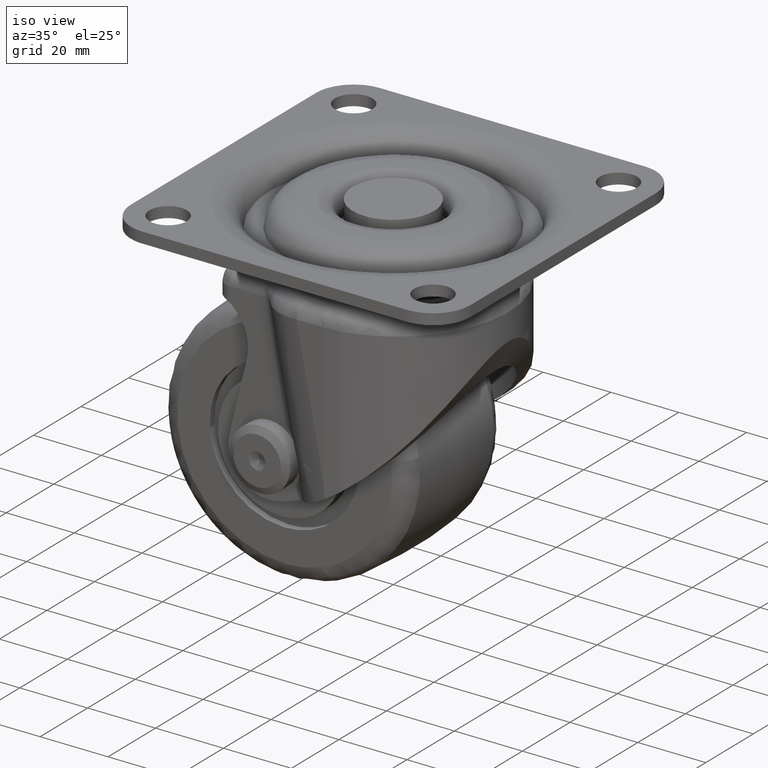
[diagram: clean part render]
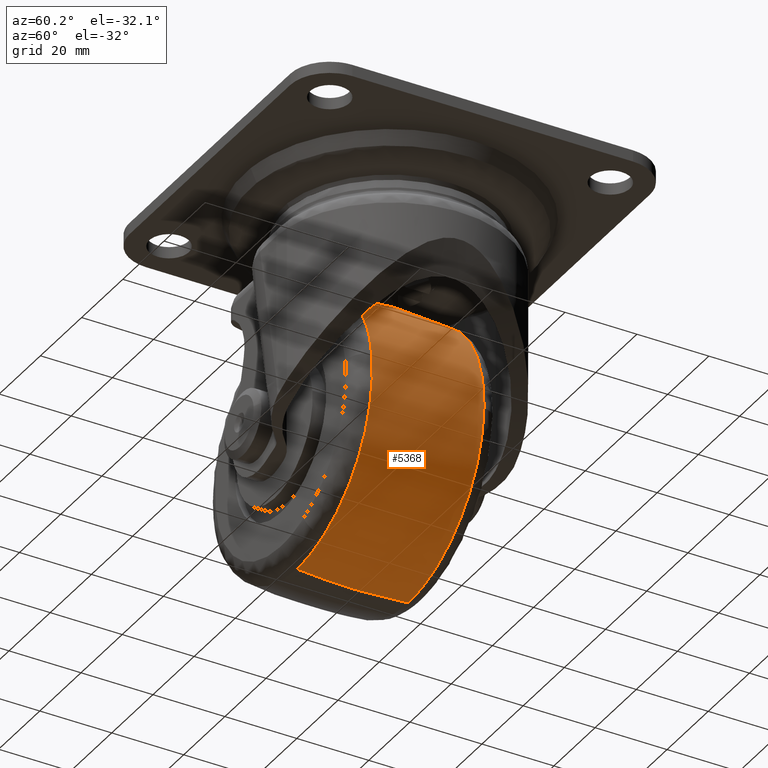
[diagram: tour spotlight — one face highlighted and labeled with its STEP entity id]
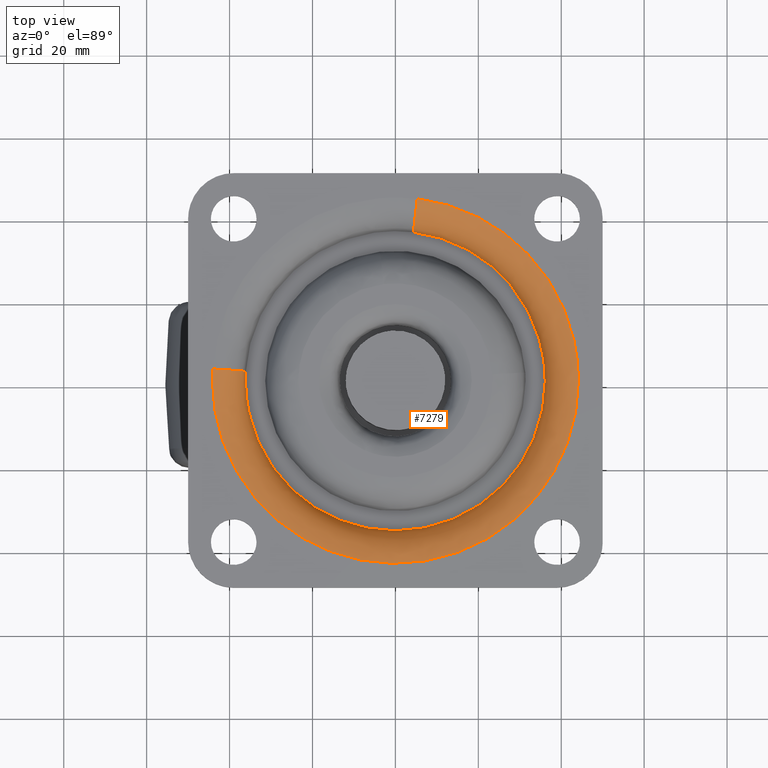
[diagram: tour spotlight — one face highlighted and labeled with its STEP entity id]
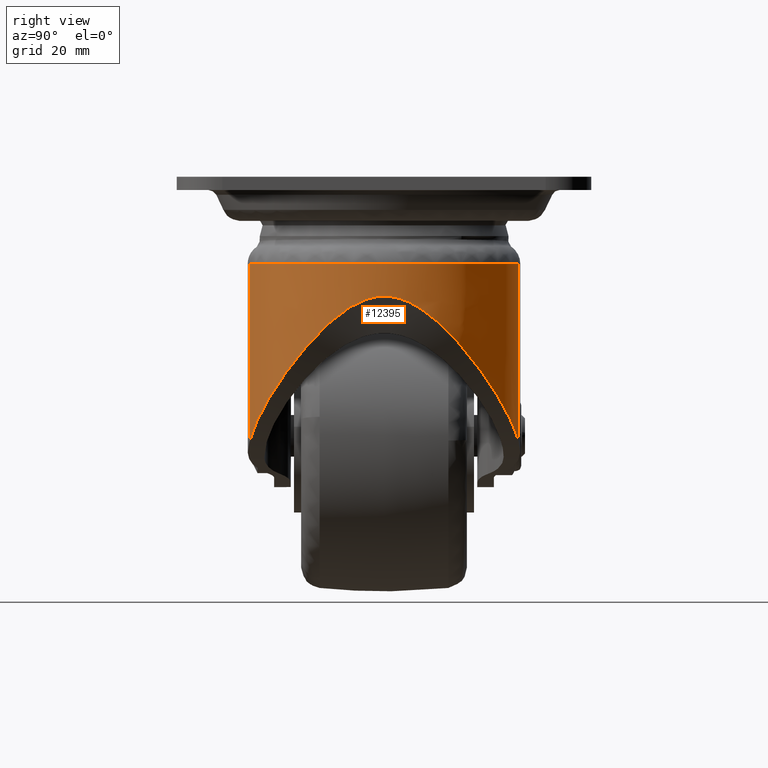
[diagram: tour spotlight — one face highlighted and labeled with its STEP entity id]
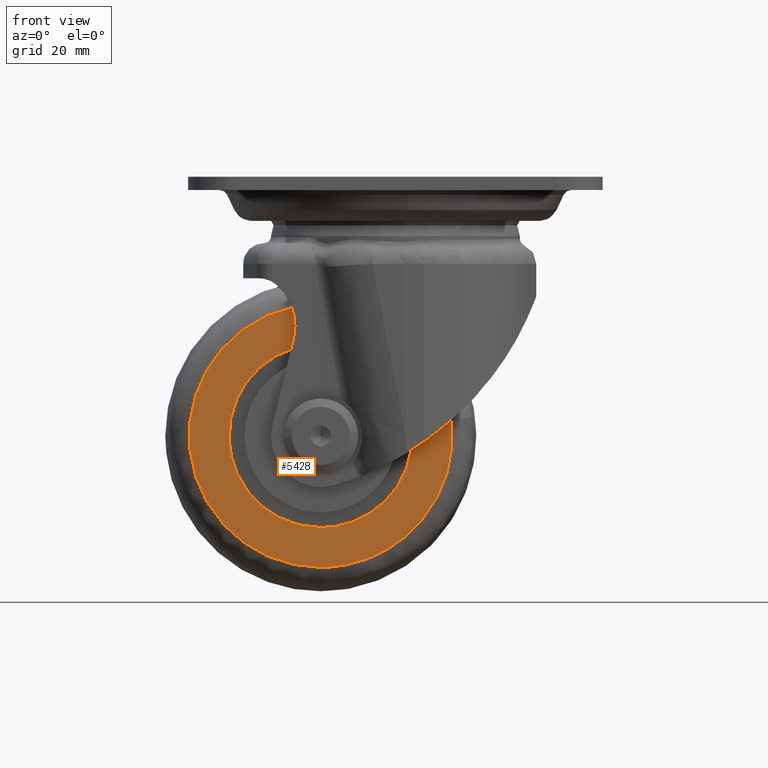
[diagram: tour spotlight — one face highlighted and labeled with its STEP entity id]
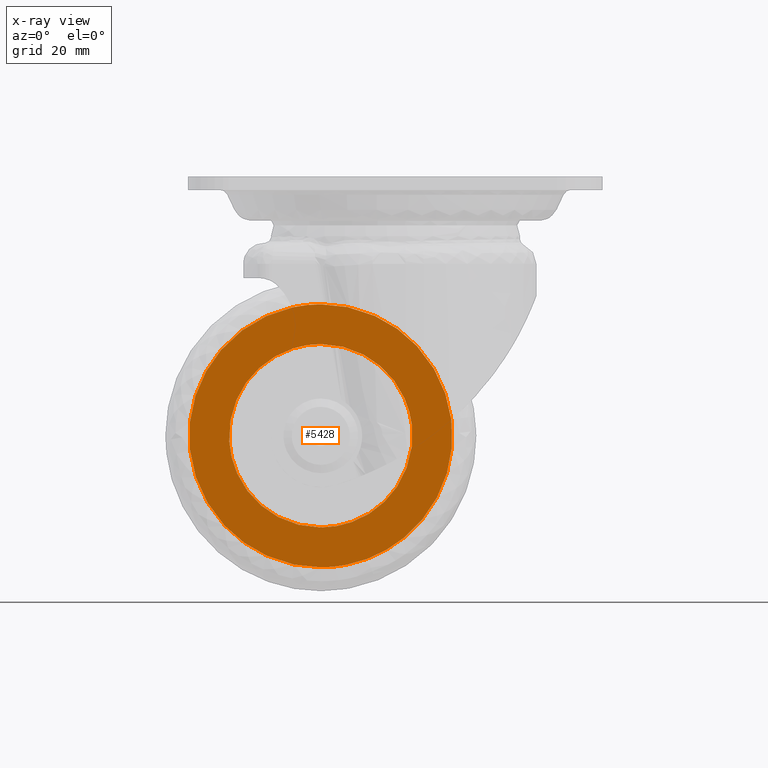
[diagram: x-ray of the same camera — body ghosted, this tour face saturated]
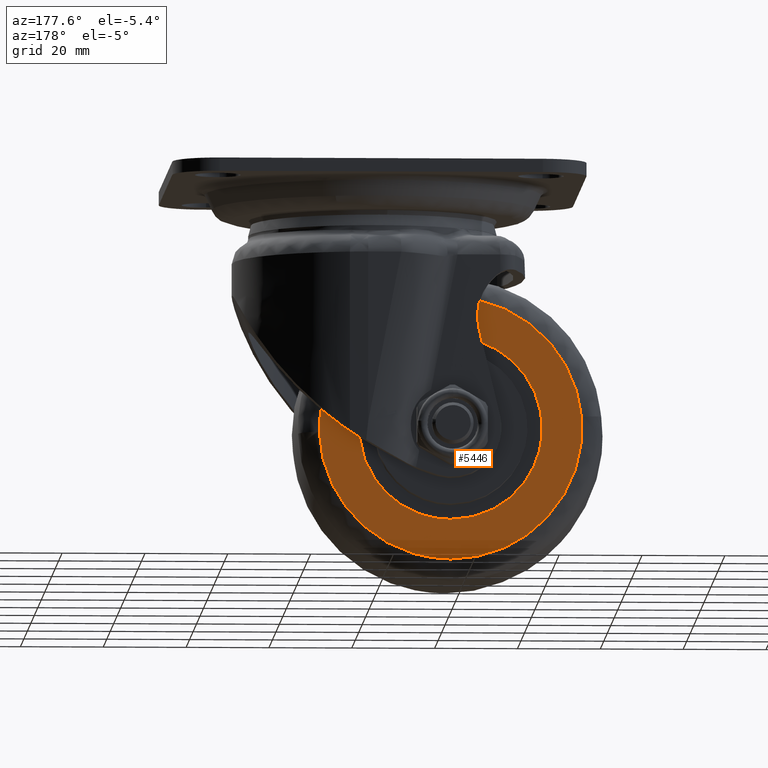
[diagram: tour spotlight — one face highlighted and labeled with its STEP entity id]
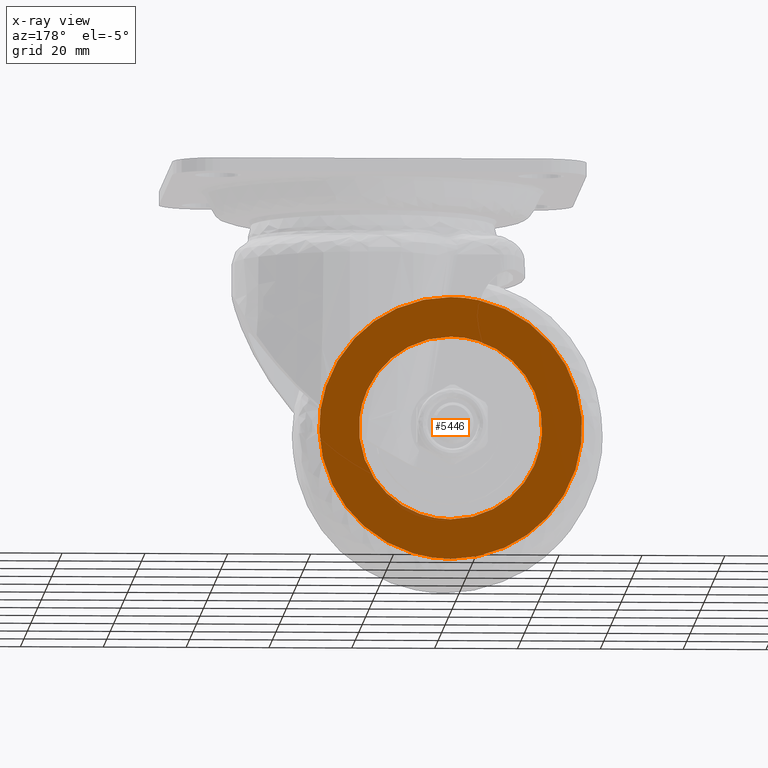
[diagram: x-ray of the same camera — body ghosted, this tour face saturated]
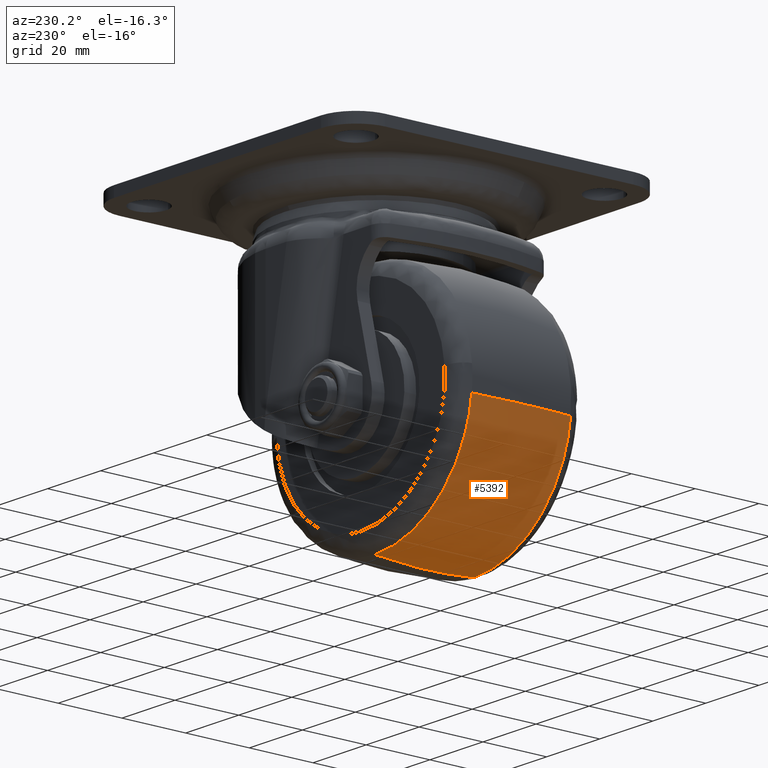
[diagram: tour spotlight — one face highlighted and labeled with its STEP entity id]
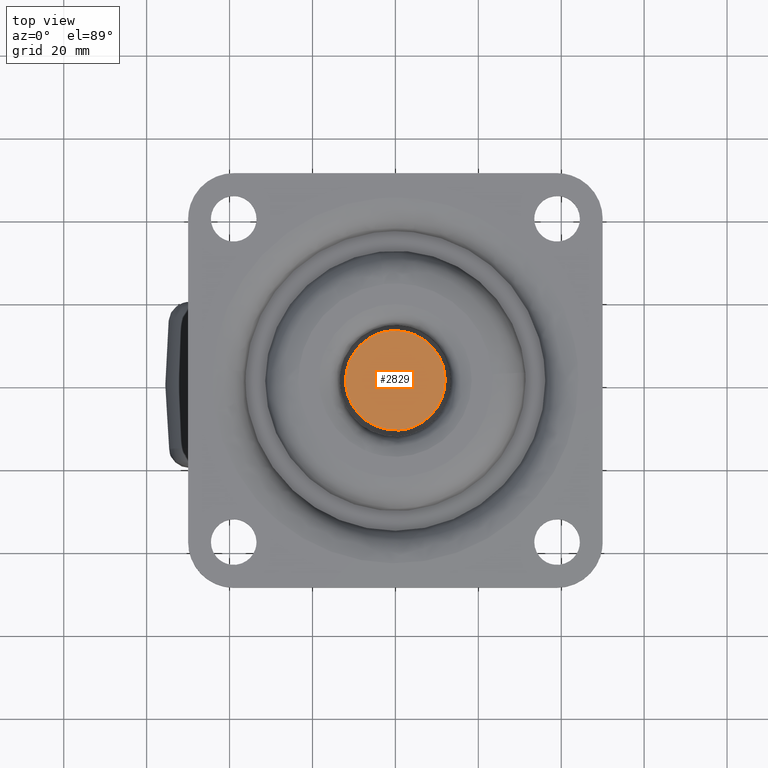
[diagram: tour spotlight — one face highlighted and labeled with its STEP entity id]
A machine part: a face-by-face anatomy tour. The part has 241 B-rep faces; the first image is the clean iso view, then the 7 largest visible faces are spotlighted one at a time (largest first), each with its STEP entity span.

Face 1 — auxiliary view, entity #5368. In plain terms, the highlighted face is a freeform B-spline surface patch.
Definition (entity closure, byte-faithful):
#4917=CARTESIAN_POINT('',(36.405869162981652,-15.517249322075170,-57.900869176843671));
#4918=VERTEX_POINT('',#4917);
#4932=CARTESIAN_POINT('',(0.0,-15.517248015191800,-25.804775498560051));
#4933=VERTEX_POINT('',#4932);
#4934=CARTESIAN_POINT('',(0.0,-15.517248015191800,-25.804775498560051));
#4935=CARTESIAN_POINT('',(32.351191039134093,-15.517247881360460,-25.804775659838100));
#4936=CARTESIAN_POINT('',(36.405869162981645,-15.517249322075170,-57.900869176843671));
#4944=(BOUNDED_CURVE()B_SPLINE_CURVE(2,(#4934,#4935,#4936),.UNSPECIFIED.,.F.,.U.)B_SPLINE_CURVE_WITH_KNOTS((3,3),(0.0,0.228321257227901),.UNSPECIFIED.)CURVE()GEOMETRIC_REPRESENTATION_ITEM()RATIONAL_B_SPLINE_CURVE((1.0,0.732505008187943,0.953608359037453))REPRESENTATION_ITEM(''));
#4945=EDGE_CURVE('',#4933,#4918,#4944,.T.);
#4947=CARTESIAN_POINT('',(-36.449793876648862,-15.517253867070529,-66.736978037823619));
#4948=VERTEX_POINT('',#4947);
#4949=CARTESIAN_POINT('',(-36.449793876648862,-15.517253867070529,-66.736978037823619));
#4950=CARTESIAN_POINT('',(-36.695223912469523,-15.517253716143598,-64.625597341269938));
#4951=CARTESIAN_POINT('',(-36.695223929979399,-15.517253546656450,-62.499999933572582));
#4952=CARTESIAN_POINT('',(-36.695224232260806,-15.517250620717078,-25.804775467270272));
#4953=CARTESIAN_POINT('',(0.0,-15.517248015191800,-25.804775498560051));
#4961=(BOUNDED_CURVE()B_SPLINE_CURVE(2,(#4949,#4950,#4951,#4952,#4953),.UNSPECIFIED.,.F.,.U.)B_SPLINE_CURVE_WITH_KNOTS((3,2,3),(0.730000035775448,0.750000000000000,1.0),.UNSPECIFIED.)CURVE()GEOMETRIC_REPRESENTATION_ITEM()RATIONAL_B_SPLINE_CURVE((0.956886188605427,0.976568584408469,1.0,0.707106781186548,1.0))REPRESENTATION_ITEM(''));
#4962=EDGE_CURVE('',#4948,#4933,#4961,.T.);
#4964=CARTESIAN_POINT('',(0.0,-15.517251615525330,-99.195224126982296));
#4965=VERTEX_POINT('',#4964);
#4979=CARTESIAN_POINT('',(12.993956406167220,-15.517251932771419,-96.817581280236965));
#4980=VERTEX_POINT('',#4979);
#4981=CARTESIAN_POINT('',(12.993956406167221,-15.517251932771416,-96.817581280236965));
#4982=CARTESIAN_POINT('',(6.714509091297061,-15.517251832468620,-99.195222927038017));
#4983=CARTESIAN_POINT('',(0.0,-15.517251615525330,-99.195224126982296));
#4991=(BOUNDED_CURVE()B_SPLINE_CURVE(2,(#4981,#4982,#4983),.UNSPECIFIED.,.F.,.U.)B_SPLINE_CURVE_WITH_KNOTS((3,3),(0.439864484046886,0.500000000000000),.UNSPECIFIED.)CURVE()GEOMETRIC_REPRESENTATION_ITEM()RATIONAL_B_SPLINE_CURVE((0.892987608412916,0.929546860669939,1.0))REPRESENTATION_ITEM(''));
#4992=EDGE_CURVE('',#4980,#4965,#4991,.T.);
#5049=CARTESIAN_POINT('',(36.405869162981645,-15.517249322075170,-57.900869176843671));
#5050=CARTESIAN_POINT('',(36.695222013816363,-15.517249462452620,-60.191332280644524));
#5051=CARTESIAN_POINT('',(36.695222085453473,-15.517249606268200,-62.499999908030482));
#5052=CARTESIAN_POINT('',(36.695222871848955,-15.517251185002037,-87.843371113671779));
#5053=CARTESIAN_POINT('',(12.993956406167221,-15.517251932771416,-96.817581280236965));
#5061=(BOUNDED_CURVE()B_SPLINE_CURVE(2,(#5049,#5050,#5051,#5052,#5053),.UNSPECIFIED.,.F.,.U.)B_SPLINE_CURVE_WITH_KNOTS((3,2,3),(0.228321257227901,0.250000000000000,0.439864484046886),.UNSPECIFIED.)CURVE()GEOMETRIC_REPRESENTATION_ITEM()RATIONAL_B_SPLINE_CURVE((0.953608359037453,0.974601772998604,1.0,0.777559920516609,0.892987608412916))REPRESENTATION_ITEM(''));
#5062=EDGE_CURVE('',#4918,#4980,#5061,.T.);
#5097=CARTESIAN_POINT('',(36.677883365116443,15.517249484876359,-63.627830548707621));
#5098=VERTEX_POINT('',#5097);
#5099=CARTESIAN_POINT('',(0.0,15.517244941485520,-99.195222311844901));
#5100=VERTEX_POINT('',#5099);
#5101=CARTESIAN_POINT('',(36.677883365116436,15.517249484876357,-63.627830548707621));
#5102=CARTESIAN_POINT('',(35.584201482094116,15.517248072039036,-99.195222300116626));
#5103=CARTESIAN_POINT('',(0.0,15.517244941485520,-99.195222311844901));
#5111=(BOUNDED_CURVE()B_SPLINE_CURVE(2,(#5101,#5102,#5103),.UNSPECIFIED.,.F.,.U.)B_SPLINE_CURVE_WITH_KNOTS((3,3),(0.255400142108458,0.500000000000000),.UNSPECIFIED.)CURVE()GEOMETRIC_REPRESENTATION_ITEM()RATIONAL_B_SPLINE_CURVE((0.987619998871730,0.713433441203333,1.0))REPRESENTATION_ITEM(''));
#5112=EDGE_CURVE('',#5098,#5100,#5111,.T.);
#5114=CARTESIAN_POINT('',(-36.449792078363529,15.517247110264440,-66.736977862260062));
#5115=VERTEX_POINT('',#5114);
#5129=CARTESIAN_POINT('',(-36.553342693369402,15.517246422364931,-59.276280948533213));
#5130=VERTEX_POINT('',#5129);
#5131=CARTESIAN_POINT('',(-36.449792078363529,15.517247110264440,-66.736977862260062));
#5132=CARTESIAN_POINT('',(-36.695221714157832,15.517246930524665,-64.625597418361153));
#5133=CARTESIAN_POINT('',(-36.695221347227772,15.517246732499100,-62.500000263877951));
#5134=CARTESIAN_POINT('',(-36.695221068442400,15.517246582043649,-60.885018530430770));
#5135=CARTESIAN_POINT('',(-36.553342693369409,15.517246422364927,-59.276280948533213));
#5143=(BOUNDED_CURVE()B_SPLINE_CURVE(2,(#5131,#5132,#5133,#5134,#5135),.UNSPECIFIED.,.F.,.U.)B_SPLINE_CURVE_WITH_KNOTS((3,2,3),(0.730000035622184,0.750000000000000,0.765281546766621),.UNSPECIFIED.)CURVE()GEOMETRIC_REPRESENTATION_ITEM()RATIONAL_B_SPLINE_CURVE((0.956886188303766,0.976568584228909,1.0,0.982096554316304,0.966381847372600))REPRESENTATION_ITEM(''));
#5144=EDGE_CURVE('',#5115,#5130,#5143,.T.);
#5232=CARTESIAN_POINT('',(0.0,15.517241397116400,-25.804779828798051));
#5233=VERTEX_POINT('',#5232);
#5234=CARTESIAN_POINT('',(0.0,15.517241397116400,-25.804779828798051));
#5235=CARTESIAN_POINT('',(36.695219801342319,15.517244432886390,-25.804779817424890));
#5236=CARTESIAN_POINT('',(36.695219419934823,15.517249335624649,-62.500001047220053));
#5237=CARTESIAN_POINT('',(36.695219414072149,15.517249410985404,-63.064049035482086));
#5238=CARTESIAN_POINT('',(36.677883365116436,15.517249484876357,-63.627830548707621));
#5246=(BOUNDED_CURVE()B_SPLINE_CURVE(2,(#5234,#5235,#5236,#5237,#5238),.UNSPECIFIED.,.F.,.U.)B_SPLINE_CURVE_WITH_KNOTS((3,2,3),(0.0,0.250000000000000,0.255400142108458),.UNSPECIFIED.)CURVE()GEOMETRIC_REPRESENTATION_ITEM()RATIONAL_B_SPLINE_CURVE((1.0,0.707106781186548,1.0,0.993673339983215,0.987619998871730))REPRESENTATION_ITEM(''));
#5247=EDGE_CURVE('',#5233,#5098,#5246,.T.);
#5281=CARTESIAN_POINT('',(-36.553342693369402,15.517246422364932,-59.276280948533213));
#5282=CARTESIAN_POINT('',(-33.601417292221143,15.517243669259884,-25.804779967224469));
#5283=CARTESIAN_POINT('',(0.0,15.517241397116400,-25.804779828798051));
#5291=(BOUNDED_CURVE()B_SPLINE_CURVE(2,(#5281,#5282,#5283),.UNSPECIFIED.,.F.,.U.)B_SPLINE_CURVE_WITH_KNOTS((3,3),(0.765281546766621,1.0),.UNSPECIFIED.)CURVE()GEOMETRIC_REPRESENTATION_ITEM()RATIONAL_B_SPLINE_CURVE((0.966381847372600,0.725010226870244,1.0))REPRESENTATION_ITEM(''));
#5292=EDGE_CURVE('',#5130,#5233,#5291,.T.);
#5297=CARTESIAN_POINT('',(-36.282641195028837,17.057819787561680,-66.717554832738287));
#5298=CARTESIAN_POINT('',(-38.222043254461973,-0.000003390297983,-66.942994168436528));
#5299=CARTESIAN_POINT('',(-36.282640434073301,-17.057826480471185,-66.717554744283532));
#5300=CARTESIAN_POINT('',(-36.526946503292031,17.057819787561687,-64.615853208624685));
#5301=CARTESIAN_POINT('',(-38.479407320367116,-0.000003390297982,-64.728951096074709));
#5302=CARTESIAN_POINT('',(-36.526945737212664,-17.057826480471181,-64.615853164248904));
#5303=CARTESIAN_POINT('',(-36.526946503292031,17.057819787561687,-62.500000000000014));
#5304=CARTESIAN_POINT('',(-38.479407320367109,-0.000003390297979,-62.500000000000000));
#5305=CARTESIAN_POINT('',(-36.526945737212671,-17.057826480471181,-62.500000000000014));
#5306=CARTESIAN_POINT('',(-36.526946503292031,17.057819787561687,-25.973053496707976));
#5307=CARTESIAN_POINT('',(-38.479407320367123,-0.000003390297980,-24.020592679632884));
#5308=CARTESIAN_POINT('',(-36.526945737212678,-17.057826480471185,-25.973054262787322));
#5309=CARTESIAN_POINT('',(0.0,17.057819787561687,-25.973053496707969));
#5310=CARTESIAN_POINT('',(0.0,-0.000003390297979,-24.020592679632884));
#5311=CARTESIAN_POINT('',(0.0,-17.057826480471181,-25.973054262787322));
#5312=CARTESIAN_POINT('',(36.526946503292031,17.057819787561687,-25.973053496707976));
#5313=CARTESIAN_POINT('',(38.479407320367123,-0.000003390297980,-24.020592679632884));
#5314=CARTESIAN_POINT('',(36.526945737212678,-17.057826480471185,-25.973054262787322));
#5315=CARTESIAN_POINT('',(36.526946503292031,17.057819787561687,-62.500000000000014));
#5316=CARTESIAN_POINT('',(38.479407320367109,-0.000003390297979,-62.500000000000000));
#5317=CARTESIAN_POINT('',(36.526945737212671,-17.057826480471181,-62.500000000000014));
#5318=CARTESIAN_POINT('',(36.526946503292031,17.057819787561687,-99.026946503292024));
#5319=CARTESIAN_POINT('',(38.479407320367123,-0.000003390297980,-100.979407320367120));
#5320=CARTESIAN_POINT('',(36.526945737212678,-17.057826480471185,-99.026945737212685));
#5321=CARTESIAN_POINT('',(0.0,17.057819787561687,-99.026946503292038));
#5322=CARTESIAN_POINT('',(0.0,-0.000003390297979,-100.979407320367100));
#5323=CARTESIAN_POINT('',(0.0,-17.057826480471181,-99.026945737212671));
#5331=(BOUNDED_SURFACE()B_SPLINE_SURFACE(2,2,((#5297,#5300,#5303,#5306,#5309,#5312,#5315,#5318,#5321),(#5298,#5301,#5304,#5307,#5310,#5313,#5316,#5319,#5322),(#5299,#5302,#5305,#5308,#5311,#5314,#5317,#5320,#5323)),.UNSPECIFIED.,.F.,.F.,.U.)B_SPLINE_SURFACE_WITH_KNOTS((3,3),(3,2,2,2,3),(0.0,34.226660885250212),(0.0,4.970561711536941,67.102596067501125,129.234630423465290,191.366664779429500),.UNSPECIFIED.)GEOMETRIC_REPRESENTATION_ITEM()RATIONAL_B_SPLINE_SURFACE(((0.839999910101653,0.857278070373645,0.877847307975337,0.620731784315716,0.877847307975337,0.620731784315716,0.877847307975337,0.620731784315716,0.877847307975337),(0.834550810027260,0.851716886448658,0.872152690900182,0.616705081965613,0.872152690900182,0.616705081965613,0.872152690900182,0.616705081965613,0.872152690900182),(0.839999912253655,0.857278072569913,0.877847310224300,0.620731785905974,0.877847310224300,0.620731785905974,0.877847310224300,0.620731785905974,0.877847310224300)))REPRESENTATION_ITEM('')SURFACE());
#5332=ORIENTED_EDGE('',*,*,#4962,.T.);
#5333=ORIENTED_EDGE('',*,*,#4945,.T.);
#5334=ORIENTED_EDGE('',*,*,#5062,.T.);
#5335=ORIENTED_EDGE('',*,*,#4992,.T.);
#5336=CARTESIAN_POINT('',(0.0,15.517244941485517,-99.195222311844915));
#5337=CARTESIAN_POINT('',(0.0,-0.000003371721056,-100.809115346414560));
#5338=CARTESIAN_POINT('',(0.0,-15.517251615525325,-99.195224126982296));
#5346=(BOUNDED_CURVE()B_SPLINE_CURVE(2,(#5336,#5337,#5338),.UNSPECIFIED.,.F.,.U.)B_SPLINE_CURVE_WITH_KNOTS((3,3),(0.431391331764442,0.568608696755920),.UNSPECIFIED.)CURVE()GEOMETRIC_REPRESENTATION_ITEM()RATIONAL_B_SPLINE_CURVE((0.877353574678528,0.872646424343099,0.877353576635273))REPRESENTATION_ITEM(''));
#5347=EDGE_CURVE('',#5100,#4965,#5346,.T.);
#5348=ORIENTED_EDGE('',*,*,#5347,.F.);
#5349=ORIENTED_EDGE('',*,*,#5112,.F.);
#5350=ORIENTED_EDGE('',*,*,#5247,.F.);
#5351=ORIENTED_EDGE('',*,*,#5292,.F.);
#5352=ORIENTED_EDGE('',*,*,#5144,.F.);
#5353=CARTESIAN_POINT('',(-36.449792078363522,15.517247110264439,-66.736977862260062));
#5354=CARTESIAN_POINT('',(-38.052891270136683,-0.000003413551862,-66.923324814073879));
#5355=CARTESIAN_POINT('',(-36.449793876648855,-15.517253867070533,-66.736978037823619));
#5363=(BOUNDED_CURVE()B_SPLINE_CURVE(2,(#5353,#5354,#5355),.UNSPECIFIED.,.F.,.U.)B_SPLINE_CURVE_WITH_KNOTS((3,3),(0.431391322123576,0.568608706764706),.UNSPECIFIED.)CURVE()GEOMETRIC_REPRESENTATION_ITEM()RATIONAL_B_SPLINE_CURVE((0.839527456987766,0.835023248897621,0.839527458884302))REPRESENTATION_ITEM(''));
#5364=EDGE_CURVE('',#5115,#4948,#5363,.T.);
#5365=ORIENTED_EDGE('',*,*,#5364,.T.);
#5366=EDGE_LOOP('',(#5332,#5333,#5334,#5335,#5348,#5349,#5350,#5351,#5352,#5365));
#5367=FACE_OUTER_BOUND('',#5366,.T.);
#5368=ADVANCED_FACE('',(#5367),#5331,.T.);

Face 2 — top view, entity #7279. In plain terms, the highlighted face is a freeform B-spline surface patch.
Definition (entity closure, byte-faithful):
#7124=CARTESIAN_POINT('',(4.328017631746351,35.876811092637844,-7.979098766859918));
#7125=CARTESIAN_POINT('',(38.208407599749208,31.789632754146947,-7.979098766859922));
#7126=CARTESIAN_POINT('',(36.065616513188644,-2.269056262224992,-7.979098766859919));
#7127=CARTESIAN_POINT('',(33.796560250963665,-38.334672775413623,-7.979098766859920));
#7128=CARTESIAN_POINT('',(-2.269056262224982,-36.065616513188644,-7.979098766859919));
#7129=CARTESIAN_POINT('',(-38.334672775413623,-33.796560250963665,-7.979098766859920));
#7130=CARTESIAN_POINT('',(-36.065616513188644,2.269056262224980,-7.979098766859919));
#7131=CARTESIAN_POINT('',(4.330688275457947,35.898949214080289,0.555728085921710));
#7132=CARTESIAN_POINT('',(38.231984454597921,31.809248844013609,0.555728085921710));
#7133=CARTESIAN_POINT('',(36.087871138779647,-2.270456404588905,0.555728085921710));
#7134=CARTESIAN_POINT('',(33.817414734190763,-38.358327543368560,0.555728085921710));
#7135=CARTESIAN_POINT('',(-2.270456404588895,-36.087871138779647,0.555728085921710));
#7136=CARTESIAN_POINT('',(-38.358327543368560,-33.817414734190763,0.555728085921710));
#7137=CARTESIAN_POINT('',(-36.087871138779647,2.270456404588894,0.555728085921710));
#7138=CARTESIAN_POINT('',(5.350570960918370,44.353198146553247,-0.018101968536172));
#7139=CARTESIAN_POINT('',(47.235666201216681,39.300368054176779,-0.018101968536172));
#7140=CARTESIAN_POINT('',(44.586611428664931,-2.805151822002223,-0.018101968536172));
#7141=CARTESIAN_POINT('',(41.781459606662722,-47.391763250667140,-0.018101968536172));
#7142=CARTESIAN_POINT('',(-2.805151822002210,-44.586611428664931,-0.018101968536172));
#7143=CARTESIAN_POINT('',(-47.391763250667140,-41.781459606662722,-0.018101968536172));
#7144=CARTESIAN_POINT('',(-44.586611428664931,2.805151822002207,-0.018101968536172));
#7152=(BOUNDED_SURFACE()B_SPLINE_SURFACE(2,2,((#7124,#7131,#7138),(#7125,#7132,#7139),(#7126,#7133,#7140),(#7127,#7134,#7141),(#7128,#7135,#7142),(#7129,#7136,#7143),(#7130,#7137,#7144)),.UNSPECIFIED.,.F.,.F.,.U.)B_SPLINE_SURFACE_WITH_KNOTS((3,2,2,3),(3,3),(0.0,71.058794250021904,145.078371593794710,219.097948937567590),(0.0,13.865110306182579),.UNSPECIFIED.)GEOMETRIC_REPRESENTATION_ITEM()RATIONAL_B_SPLINE_SURFACE(((0.893243349468339,0.610140268119743,0.891116800045037),(0.656858942349949,0.448675147081466,0.655295154602886),(0.913798515304720,0.624180713427419,0.911623030083485),(0.646153126810167,0.441362415150385,0.644614826457861),(0.913798515304720,0.624180713427419,0.911623030083485),(0.646153126810167,0.441362415150385,0.644614826457861),(0.913798515304720,0.624180713427419,0.911623030083485)))REPRESENTATION_ITEM('')SURFACE());
#7153=CARTESIAN_POINT('',(4.330343572846488,35.896091824904197,-7.442517281382962));
#7154=VERTEX_POINT('',#7153);
#7155=CARTESIAN_POINT('',(36.156345000000201,0.0,-7.442517281741189));
#7156=VERTEX_POINT('',#7155);
#7157=CARTESIAN_POINT('',(4.330343572846489,35.896091824904211,-7.442517281382963));
#7158=CARTESIAN_POINT('',(36.156345000000208,32.056745708818177,-7.442517281741189));
#7159=CARTESIAN_POINT('',(36.156345000000201,0.0,-7.442517281741189));
#7167=(BOUNDED_CURVE()B_SPLINE_CURVE(2,(#7157,#7158,#7159),.UNSPECIFIED.,.F.,.U.)B_SPLINE_CURVE_WITH_KNOTS((3,3),(0.270732403713783,0.500000000000000),.UNSPECIFIED.)CURVE()GEOMETRIC_REPRESENTATION_ITEM()RATIONAL_B_SPLINE_CURVE((0.955449597720975,0.731396303016427,1.0))REPRESENTATION_ITEM(''));
#7168=EDGE_CURVE('',#7154,#7156,#7167,.T.);
#7169=ORIENTED_EDGE('',*,*,#7168,.T.);
#7170=CARTESIAN_POINT('',(-36.156345000000201,0.0,-7.442517281741189));
#7171=VERTEX_POINT('',#7170);
#7172=CARTESIAN_POINT('',(36.156345000000201,0.0,-7.442517281741189));
#7173=CARTESIAN_POINT('',(36.156345000000208,-36.156345000000208,-7.442517281741191));
#7174=CARTESIAN_POINT('',(0.0,-36.156345000000201,-7.442517281741189));
#7175=CARTESIAN_POINT('',(-36.156345000000208,-36.156345000000208,-7.442517281741191));
#7176=CARTESIAN_POINT('',(-36.156345000000201,0.0,-7.442517281741189));
#7184=(BOUNDED_CURVE()B_SPLINE_CURVE(2,(#7172,#7173,#7174,#7175,#7176),.UNSPECIFIED.,.F.,.U.)B_SPLINE_CURVE_WITH_KNOTS((3,2,3),(0.500000000000000,0.750000000000000,1.0),.UNSPECIFIED.)CURVE()GEOMETRIC_REPRESENTATION_ITEM()RATIONAL_B_SPLINE_CURVE((1.0,0.707106781186548,1.0,0.707106781186548,1.0))REPRESENTATION_ITEM(''));
#7185=EDGE_CURVE('',#7156,#7171,#7184,.T.);
#7186=ORIENTED_EDGE('',*,*,#7185,.T.);
#7187=CARTESIAN_POINT('',(-36.084998712297093,2.270275686834453,-7.442517281409375));
#7188=VERTEX_POINT('',#7187);
#7189=CARTESIAN_POINT('',(-36.156345000000201,0.0,-7.442517281741189));
#7190=CARTESIAN_POINT('',(-36.156345000000194,1.136258917127098,-7.442517281741190));
#7191=CARTESIAN_POINT('',(-36.084998712297086,2.270275686834453,-7.442517281409375));
#7199=(BOUNDED_CURVE()B_SPLINE_CURVE(2,(#7189,#7190,#7191),.UNSPECIFIED.,.F.,.U.)B_SPLINE_CURVE_WITH_KNOTS((3,3),(0.0,0.010968089259653),.UNSPECIFIED.)CURVE()GEOMETRIC_REPRESENTATION_ITEM()RATIONAL_B_SPLINE_CURVE((1.0,0.987150084130028,0.975427680453984))REPRESENTATION_ITEM(''));
#7200=EDGE_CURVE('',#7171,#7188,#7199,.T.);
#7201=ORIENTED_EDGE('',*,*,#7200,.T.);
#7202=CARTESIAN_POINT('',(-44.049803090523582,2.771378704071481,-1.252076E-015));
#7203=VERTEX_POINT('',#7202);
#7204=CARTESIAN_POINT('',(-36.084998712297093,2.270275686834453,-7.442517281409375));
#7205=CARTESIAN_POINT('',(-36.603871019311754,2.302920365375508,-1.369980E-010));
#7206=CARTESIAN_POINT('',(-44.049803090523575,2.771378704071481,-1.252076E-015));
#7214=(BOUNDED_CURVE()B_SPLINE_CURVE(2,(#7204,#7205,#7206),.UNSPECIFIED.,.F.,.U.)B_SPLINE_CURVE_WITH_KNOTS((3,3),(-1.720603117928212,-0.285348507119918),.UNSPECIFIED.)CURVE()GEOMETRIC_REPRESENTATION_ITEM()RATIONAL_B_SPLINE_CURVE((0.888683670925943,0.649196803793291,0.886705694420342))REPRESENTATION_ITEM(''));
#7215=EDGE_CURVE('',#7188,#7203,#7214,.T.);
#7216=ORIENTED_EDGE('',*,*,#7215,.T.);
#7217=CARTESIAN_POINT('',(-44.136897175059403,0.0,0.0));
#7218=VERTEX_POINT('',#7217);
#7219=CARTESIAN_POINT('',(-44.136897175059403,0.0,0.0));
#7220=CARTESIAN_POINT('',(-44.136897175059403,1.387057872993806,0.0));
#7221=CARTESIAN_POINT('',(-44.049803090523575,2.771378704071481,-1.252076E-015));
#7229=(BOUNDED_CURVE()B_SPLINE_CURVE(2,(#7219,#7220,#7221),.UNSPECIFIED.,.F.,.U.)B_SPLINE_CURVE_WITH_KNOTS((3,3),(0.0,0.010968089259965),.UNSPECIFIED.)CURVE()GEOMETRIC_REPRESENTATION_ITEM()RATIONAL_B_SPLINE_CURVE((1.0,0.987150084129662,0.975427680453316))REPRESENTATION_ITEM(''));
#7230=EDGE_CURVE('',#7218,#7203,#7229,.T.);
#7231=ORIENTED_EDGE('',*,*,#7230,.F.);
#7232=CARTESIAN_POINT('',(44.136897175059403,0.0,0.0));
#7233=VERTEX_POINT('',#7232);
#7234=CARTESIAN_POINT('',(44.136897175059403,0.0,0.0));
#7235=CARTESIAN_POINT('',(44.136897175059403,-44.136897175059403,0.0));
#7236=CARTESIAN_POINT('',(0.0,-44.136897175059403,0.0));
#7237=CARTESIAN_POINT('',(-44.136897175059403,-44.136897175059403,0.0));
#7238=CARTESIAN_POINT('',(-44.136897175059403,0.0,0.0));
#7246=(BOUNDED_CURVE()B_SPLINE_CURVE(2,(#7234,#7235,#7236,#7237,#7238),.UNSPECIFIED.,.F.,.U.)B_SPLINE_CURVE_WITH_KNOTS((3,2,3),(0.500000000000000,0.750000000000000,1.0),.UNSPECIFIED.)CURVE()GEOMETRIC_REPRESENTATION_ITEM()RATIONAL_B_SPLINE_CURVE((1.0,0.707106781186548,1.0,0.707106781186548,1.0))REPRESENTATION_ITEM(''));
#7247=EDGE_CURVE('',#7233,#7218,#7246,.T.);
#7248=ORIENTED_EDGE('',*,*,#7247,.F.);
#7249=CARTESIAN_POINT('',(5.286151822323910,43.819200027496862,-1.280889E-015));
#7250=VERTEX_POINT('',#7249);
#7251=CARTESIAN_POINT('',(5.286151822323910,43.819200027496869,-1.280889E-015));
#7252=CARTESIAN_POINT('',(44.136897175059417,39.132420301402711,0.0));
#7253=CARTESIAN_POINT('',(44.136897175059403,0.0,0.0));
#7261=(BOUNDED_CURVE()B_SPLINE_CURVE(2,(#7251,#7252,#7253),.UNSPECIFIED.,.F.,.U.)B_SPLINE_CURVE_WITH_KNOTS((3,3),(0.270732403715514,0.500000000000000),.UNSPECIFIED.)CURVE()GEOMETRIC_REPRESENTATION_ITEM()RATIONAL_B_SPLINE_CURVE((0.955449597717592,0.731396303018455,1.0))REPRESENTATION_ITEM(''));
#7262=EDGE_CURVE('',#7250,#7233,#7261,.T.);
#7263=ORIENTED_EDGE('',*,*,#7262,.F.);
#7264=CARTESIAN_POINT('',(4.330343572846488,35.896091824904204,-7.442517281382962));
#7265=CARTESIAN_POINT('',(4.392610316349766,36.412247807702229,-2.183213E-009));
#7266=CARTESIAN_POINT('',(5.286151822323910,43.819200027496862,-1.280889E-015));
#7274=(BOUNDED_CURVE()B_SPLINE_CURVE(2,(#7264,#7265,#7266),.UNSPECIFIED.,.F.,.U.)B_SPLINE_CURVE_WITH_KNOTS((3,3),(-1.720603117921240,-0.285348507408181),.UNSPECIFIED.)CURVE()GEOMETRIC_REPRESENTATION_ITEM()RATIONAL_B_SPLINE_CURVE((0.868693443399742,0.634593641613743,0.866759959800697))REPRESENTATION_ITEM(''));
#7275=EDGE_CURVE('',#7154,#7250,#7274,.T.);
#7276=ORIENTED_EDGE('',*,*,#7275,.F.);
#7277=EDGE_LOOP('',(#7169,#7186,#7201,#7216,#7231,#7248,#7263,#7276));
#7278=FACE_OUTER_BOUND('',#7277,.T.);
#7279=ADVANCED_FACE('',(#7278),#7152,.T.);

Face 3 — right view, entity #12395. In plain terms, the highlighted face is a freeform B-spline surface patch.
Definition (entity closure, byte-faithful):
#12115=CARTESIAN_POINT('',(13.276607900241020,-32.478208125000151,-27.190659831771701));
#12116=VERTEX_POINT('',#12115);
#12117=CARTESIAN_POINT('',(5.080524367846720,-32.478208125000151,-69.355854283579106));
#12118=VERTEX_POINT('',#12117);
#12119=CARTESIAN_POINT('',(13.276607900241020,-32.478208125000151,-27.190659831771701));
#12120=CARTESIAN_POINT('',(5.080524367846720,-32.478208125000151,-69.355854283579106));
#12121=QUASI_UNIFORM_CURVE('',1,(#12119,#12120),.UNSPECIFIED.,.F.,.U.);
#12122=EDGE_CURVE('',#12116,#12118,#12121,.T.);
#12190=CARTESIAN_POINT('',(13.276607900240339,32.478208125000300,-27.190659831771601));
#12191=VERTEX_POINT('',#12190);
#12205=CARTESIAN_POINT('',(5.080524367845950,32.478208125000300,-69.355854283579504));
#12206=VERTEX_POINT('',#12205);
#12207=CARTESIAN_POINT('',(5.080524367845950,32.478208125000300,-69.355854283579504));
#12208=CARTESIAN_POINT('',(13.276607900240339,32.478208125000300,-27.190659831771601));
#12209=QUASI_UNIFORM_CURVE('',1,(#12207,#12208),.UNSPECIFIED.,.F.,.U.);
#12210=EDGE_CURVE('',#12206,#12191,#12209,.T.);
#12233=CARTESIAN_POINT('',(4.039095919691748,32.620087332829243,-70.247379892446304));
#12234=CARTESIAN_POINT('',(12.650106180913649,32.620087332829243,-25.947572471515588));
#12235=CARTESIAN_POINT('',(31.874321792849898,28.279751412663867,-75.657999702588967));
#12236=CARTESIAN_POINT('',(40.485332054071790,28.279751412663867,-31.358192281658280));
#12237=CARTESIAN_POINT('',(31.529108554795862,-0.404555221685142,-75.590897046657588));
#12238=CARTESIAN_POINT('',(40.140118816017761,-0.404555221685145,-31.291089625726901));
#12239=CARTESIAN_POINT('',(31.183895316741840,-29.088861856034150,-75.523794390726209));
#12240=CARTESIAN_POINT('',(39.794905577963739,-29.088861856034150,-31.223986969795522));
#12241=CARTESIAN_POINT('',(3.252580649918784,-32.732693742252252,-70.094496811166252));
#12242=CARTESIAN_POINT('',(11.863590911140680,-32.732693742252259,-25.794689390235568));
#12250=(BOUNDED_SURFACE()B_SPLINE_SURFACE(1,2,((#12233,#12235,#12237,#12239,#12241),(#12234,#12236,#12238,#12240,#12242)),.UNSPECIFIED.,.F.,.F.,.U.)B_SPLINE_SURFACE_WITH_KNOTS((2,2),(3,2,3),(0.0,45.128953403003010),(0.0,49.352777691994213,98.705555383988425),.UNSPECIFIED.)GEOMETRIC_REPRESENTATION_ITEM()RATIONAL_B_SPLINE_SURFACE(((1.0,0.754709580222772,1.0,0.754709580222772,1.0),(1.0,0.754709580222772,1.0,0.754709580222772,1.0)))REPRESENTATION_ITEM('')SURFACE());
#12251=ORIENTED_EDGE('',*,*,#12210,.T.);
#12252=CARTESIAN_POINT('',(13.276607900240339,32.478208125000300,-27.190659831771601));
#12253=CARTESIAN_POINT('',(39.932528478204063,27.591098309758301,-32.372045914066796));
#12254=CARTESIAN_POINT('',(39.932528478204070,0.0,-32.372045914066803));
#12255=CARTESIAN_POINT('',(39.932528478204063,-27.591098309757701,-32.372045914066796));
#12256=CARTESIAN_POINT('',(13.276607900241020,-32.478208125000151,-27.190659831771701));
#12264=(BOUNDED_CURVE()B_SPLINE_CURVE(2,(#12252,#12253,#12254,#12255,#12256),.UNSPECIFIED.,.F.,.U.)B_SPLINE_CURVE_WITH_KNOTS((3,2,3),(0.0,0.500000000000000,1.0),.UNSPECIFIED.)CURVE()GEOMETRIC_REPRESENTATION_ITEM()RATIONAL_B_SPLINE_CURVE((1.0,0.767178702739322,1.0,0.767178702739322,1.0))REPRESENTATION_ITEM(''));
#12265=EDGE_CURVE('',#12191,#12116,#12264,.T.);
#12266=ORIENTED_EDGE('',*,*,#12265,.T.);
#12267=ORIENTED_EDGE('',*,*,#12122,.T.);
#12268=CARTESIAN_POINT('',(5.080524367846708,-32.478208125000123,-69.355854283579092));
#12269=CARTESIAN_POINT('',(6.174747139771593,-32.301706824361702,-68.866340759055376));
#12270=CARTESIAN_POINT('',(7.250243792418467,-32.083554042949089,-68.353749601393915));
#12271=CARTESIAN_POINT('',(9.365625141105785,-31.570572187143132,-67.283659011601472));
#12272=CARTESIAN_POINT('',(10.405505759074700,-31.275727953963880,-66.726157007171764));
#12273=CARTESIAN_POINT('',(11.939566330906310,-30.779303440238639,-65.856892502673517));
#12274=CARTESIAN_POINT('',(12.446622424274709,-30.604787076261381,-65.561633267085455));
#12275=CARTESIAN_POINT('',(13.200845853736620,-30.329742845369179,-65.110551764976833));
#12276=CARTESIAN_POINT('',(13.451272051106500,-30.235818571980069,-64.958777310104566));
#12277=CARTESIAN_POINT('',(13.949686562134660,-30.043710675445141,-64.652708535665340));
#12278=CARTESIAN_POINT('',(14.197049126973360,-29.945770141587541,-64.498799927494346));
#12279=CARTESIAN_POINT('',(15.424858238966671,-29.446880273627361,-63.724973579242914));
#12280=CARTESIAN_POINT('',(16.378350727864920,-29.018452671310602,-63.092213548161070));
#12281=CARTESIAN_POINT('',(18.232474436857441,-28.107847827106230,-61.801398967036540));
#12282=CARTESIAN_POINT('',(19.133094547064520,-27.625659479435161,-61.143338952334567));
#12283=CARTESIAN_POINT('',(20.884846741129859,-26.610480155575608,-59.803914342721697));
#12284=CARTESIAN_POINT('',(21.735972604493671,-26.077486947189922,-59.122543586148467));
#12285=CARTESIAN_POINT('',(23.391122971415051,-24.961947563528199,-57.738555579401300));
#12286=CARTESIAN_POINT('',(24.195145032682479,-24.379408097931119,-57.035930006429297));
#12287=CARTESIAN_POINT('',(25.757614667714869,-23.164264416674332,-55.611769468889129));
#12288=CARTESIAN_POINT('',(26.516063707753212,-22.531679262655778,-54.890221532136259));
#12289=CARTESIAN_POINT('',(27.436068143829480,-21.708005987781611,-53.978295805176508));
#12290=CARTESIAN_POINT('',(27.618634648000508,-21.541639194809321,-53.795439022213763));
#12291=CARTESIAN_POINT('',(27.979965185050549,-21.206476927197219,-53.429807267256983));
#12292=CARTESIAN_POINT('',(28.158856744061751,-21.037568399875958,-53.246906580023030));
#12293=CARTESIAN_POINT('',(28.690260532565649,-20.526802726878810,-52.698054980496231));
#12294=CARTESIAN_POINT('',(29.037504950889730,-20.180911136225578,-52.331951090138361));
#12295=CARTESIAN_POINT('',(30.058456944934392,-19.126440264703561,-51.233980684098981));
#12296=CARTESIAN_POINT('',(30.711440719962891,-18.401189250676950,-50.502370869306013));
#12297=CARTESIAN_POINT('',(31.962404816019699,-16.900148658942239,-49.046582045876292));
#12298=CARTESIAN_POINT('',(32.560412969641789,-16.124446968289678,-48.322332408980657));
#12299=CARTESIAN_POINT('',(33.414802322846612,-14.914834986708840,-47.249116698229983));
#12300=CARTESIAN_POINT('',(33.692475982080083,-14.503908435303140,-46.893604447301414));
#12301=CARTESIAN_POINT('',(34.233039110957229,-13.664462308147341,-46.188879189041209));
#12302=CARTESIAN_POINT('',(34.495932082473168,-13.235952218911820,-45.839658981528849));
#12303=CARTESIAN_POINT('',(34.878558610538313,-12.577806128827010,-45.322367454289150));
#12304=CARTESIAN_POINT('',(35.004145981636619,-12.355853659472240,-45.151031941995811));
#12305=CARTESIAN_POINT('',(35.251267517528937,-11.906339799588350,-44.810930977986359));
#12306=CARTESIAN_POINT('',(35.372921798788042,-11.678540484348879,-44.641995738284649));
#12307=CARTESIAN_POINT('',(35.730293230676182,-10.988347017819500,-44.141467188539117));
#12308=CARTESIAN_POINT('',(35.958617828489857,-10.518929701981850,-43.815878257414717));
#12309=CARTESIAN_POINT('',(36.393765844046342,-9.557944849083816,-43.185490523147173));
#12310=CARTESIAN_POINT('',(36.600600528619907,-9.066395052597065,-42.880670990039540));
#12311=CARTESIAN_POINT('',(36.892874742010413,-8.308778628506703,-42.443665269236128));
#12312=CARTESIAN_POINT('',(36.987295702616763,-8.052845685758166,-42.301381702639489));
#12313=CARTESIAN_POINT('',(37.124103801707371,-7.663256642586068,-42.093775860585822));
#12314=CARTESIAN_POINT('',(37.168901935472128,-7.532444277815231,-42.025545098418498));
#12315=CARTESIAN_POINT('',(37.256827039746071,-7.268806705974244,-41.891166484133329));
#12316=CARTESIAN_POINT('',(37.299980558151603,-7.135890539528037,-41.824977370609020));
#12317=CARTESIAN_POINT('',(37.510553436952222,-6.468709077961085,-41.500925762905020));
#12318=CARTESIAN_POINT('',(37.663068514719612,-5.924855949313828,-41.262705357041654));
#12319=CARTESIAN_POINT('',(37.932415558945337,-4.813061537455200,-40.837821846172950));
#12320=CARTESIAN_POINT('',(38.049261450135532,-4.245127166662532,-40.651146278447293));
#12321=CARTESIAN_POINT('',(38.193860418365851,-3.371501986254954,-40.418585345890982));
#12322=CARTESIAN_POINT('',(38.236935926780141,-3.076664386594755,-40.348992335110893));
#12323=CARTESIAN_POINT('',(38.293242184096378,-2.628421254938477,-40.257771947589887));
#12324=CARTESIAN_POINT('',(38.310625440846863,-2.478008464575236,-40.229561298911371));
#12325=CARTESIAN_POINT('',(38.342504701286408,-2.175087780984816,-40.177761201072293));
#12326=CARTESIAN_POINT('',(38.357010240675962,-2.022466579818981,-40.154156249071193));
#12327=CARTESIAN_POINT('',(38.421906362870182,-1.255047237823405,-40.048445910137097));
#12328=CARTESIAN_POINT('',(38.448220429369712,-0.641595319482201,-40.005296694621357));
#12329=CARTESIAN_POINT('',(38.449809295264927,0.584334991072648,-40.002696817009081));
#12330=CARTESIAN_POINT('',(38.425084418145723,1.196813398101994,-40.043244602678108));
#12331=CARTESIAN_POINT('',(38.362473741854039,1.961812255311486,-40.145261335667357));
#12332=CARTESIAN_POINT('',(38.348333217767177,2.115090043753433,-40.168279901687569));
#12333=CARTESIAN_POINT('',(38.317078490826532,2.419806068441682,-40.219082985422183));
#12334=CARTESIAN_POINT('',(38.299976201219543,2.571212047179740,-40.246848189211562));
#12335=CARTESIAN_POINT('',(38.244406467032150,3.022696999280697,-40.336911055296753));
#12336=CARTESIAN_POINT('',(38.201679603233544,3.320044788960518,-40.405971913918492));
#12337=CARTESIAN_POINT('',(38.057621967092302,4.202080716340248,-40.637766636002603));
#12338=CARTESIAN_POINT('',(37.940459308171739,4.776787930903248,-40.825049360268068));
#12339=CARTESIAN_POINT('',(37.770719689967983,5.481172514698743,-41.092908553439088));
#12340=CARTESIAN_POINT('',(37.735603879404422,5.621347385335273,-41.148173107057758));
#12341=CARTESIAN_POINT('',(37.663100875254877,5.900351121455198,-41.261927385947089));
#12342=CARTESIAN_POINT('',(37.625703707100030,6.039201156383260,-41.320432061302533));
#12343=CARTESIAN_POINT('',(37.510803358535412,6.451716451051453,-41.499608630501321));
#12344=CARTESIAN_POINT('',(37.430408454842443,6.722093680666533,-41.624229751887121));
#12345=CARTESIAN_POINT('',(37.178785224736082,7.520940182244829,-42.011546023523309));
#12346=CARTESIAN_POINT('',(36.997162955697213,8.037192113926567,-42.287610872460782));
#12347=CARTESIAN_POINT('',(36.609846334030067,9.043634066443758,-42.866965327670663));
#12348=CARTESIAN_POINT('',(36.404133785483509,9.533797845919121,-43.170286465696243));
#12349=CARTESIAN_POINT('',(35.971039947830313,10.492682895038410,-43.798057493083782));
#12350=CARTESIAN_POINT('',(35.743648046204832,10.961388196710001,-44.122526883127037));
#12351=CARTESIAN_POINT('',(35.387513490235591,11.650892082110680,-44.621666488399427));
#12352=CARTESIAN_POINT('',(35.266288859365929,11.878459308966891,-44.790129359381822));
#12353=CARTESIAN_POINT('',(35.018961691029027,12.329397307295940,-45.130755707964369));
#12354=CARTESIAN_POINT('',(34.893206330005242,12.552132494697441,-45.302440093928318));
#12355=CARTESIAN_POINT('',(34.510231689956633,13.212235534398991,-45.820555333885260));
#12356=CARTESIAN_POINT('',(34.247164613435700,13.641803878235560,-46.170233806003573));
#12357=CARTESIAN_POINT('',(33.706390877600199,14.482986132999359,-46.875682291270842));
#12358=CARTESIAN_POINT('',(33.428680592783401,14.894589961352560,-47.231459724208527));
#12359=CARTESIAN_POINT('',(32.574413676094018,16.105776014255991,-48.305178193695333));
#12360=CARTESIAN_POINT('',(31.976796577161661,16.881922690610882,-49.029372031605071));
#12361=CARTESIAN_POINT('',(30.727362898409488,18.383018375514670,-50.484292467674962));
#12362=CARTESIAN_POINT('',(30.075517573795299,19.107875208240941,-51.215090726939323));
#12363=CARTESIAN_POINT('',(28.717419150558460,20.512424416137868,-52.676711095968223));
#12364=CARTESIAN_POINT('',(28.011156191231962,21.192073642103239,-53.407569880164971));
#12365=CARTESIAN_POINT('',(27.093209597098461,22.015207862397840,-54.318301375200832));
#12366=CARTESIAN_POINT('',(26.907860764951678,22.178506959158629,-54.500309119264713));
#12367=CARTESIAN_POINT('',(26.533602179683729,22.502471933155110,-54.863987679501911));
#12368=CARTESIAN_POINT('',(26.344651235917691,22.663167764705271,-55.045694688237873));
#12369=CARTESIAN_POINT('',(25.773990288096670,23.140011800582041,-55.588717675822643));
#12370=CARTESIAN_POINT('',(25.387966791274760,23.451367076500951,-55.948431732914067));
#12371=CARTESIAN_POINT('',(24.213006510686562,24.366239394810041,-57.020159028719299));
#12372=CARTESIAN_POINT('',(23.407205078433218,24.950621478777538,-57.724745578395833));
#12373=CARTESIAN_POINT('',(21.749244610882421,26.069020380011171,-59.111802178649661));
#12374=CARTESIAN_POINT('',(20.897087483323169,26.603029440198920,-59.794280631696473));
#12375=CARTESIAN_POINT('',(19.144218107703981,27.619565336417651,-61.135104221831760));
#12376=CARTESIAN_POINT('',(18.243511327661249,28.102093475477279,-61.793455502526548));
#12377=CARTESIAN_POINT('',(16.390409346022729,29.012860126800330,-63.084075030594491));
#12378=CARTESIAN_POINT('',(15.438024070468490,29.441108591196759,-63.716348647706241));
#12379=CARTESIAN_POINT('',(14.212552655433640,29.939572169548232,-64.489107513495341));
#12380=CARTESIAN_POINT('',(13.965705568006429,30.037417469018269,-64.642779665698967));
#12381=CARTESIAN_POINT('',(13.468424215718690,30.229318675526660,-64.948330340405519));
#12382=CARTESIAN_POINT('',(13.217848124282650,30.323426208959251,-65.100293606809146));
#12383=CARTESIAN_POINT('',(12.461539440182760,30.599569084985418,-65.552882451993952));
#12384=CARTESIAN_POINT('',(11.953145011361380,30.774739578741169,-65.849069061290990));
#12385=CARTESIAN_POINT('',(10.415239553207130,31.272911602438999,-66.720895186737593));
#12386=CARTESIAN_POINT('',(9.373021942063753,31.568634139300141,-67.279810965430997));
#12387=CARTESIAN_POINT('',(7.253508493156105,32.082905943051337,-68.352203867971483));
#12388=CARTESIAN_POINT('',(6.176216444996729,32.301469821175623,-68.865683447950389));
#12389=CARTESIAN_POINT('',(5.080524367845895,32.478208125000251,-69.355854283579461));
#12390=B_SPLINE_CURVE_WITH_KNOTS('',3,(#12268,#12269,#12270,#12271,#12272,#12273,#12274,#12275,#12276,#12277,#12278,#12279,#12280,#12281,#12282,#12283,#12284,#12285,#12286,#12287,#12288,#12289,#12290,#12291,#12292,#12293,#12294,#12295,#12296,#12297,#12298,#12299,#12300,#12301,#12302,#12303,#12304,#12305,#12306,#12307,#12308,#12309,#12310,#12311,#12312,#12313,#12314,#12315,#12316,#12317,#12318,#12319,#12320,#12321,#12322,#12323,#12324,#12325,#12326,#12327,#12328,#12329,#12330,#12331,#12332,#12333,#12334,#12335,#12336,#12337,#12338,#12339,#12340,#12341,#12342,#12343,#12344,#12345,#12346,#12347,#12348,#12349,#12350,#12351,#12352,#12353,#12354,#12355,#12356,#12357,#12358,#12359,#12360,#12361,#12362,#12363,#12364,#12365,#12366,#12367,#12368,#12369,#12370,#12371,#12372,#12373,#12374,#12375,#12376,#12377,#12378,#12379,#12380,#12381,#12382,#12383,#12384,#12385,#12386,#12387,#12388,#12389),.UNSPECIFIED.,.F.,.U.,(4,2,2,2,2,2,2,2,2,2,2,2,2,2,2,2,2,2,2,2,2,2,2,2,2,2,2,2,2,2,2,2,2,2,2,2,2,2,2,2,2,2,2,2,2,2,2,2,2,2,2,2,2,2,2,2,2,2,2,2,4),(0.0,0.031249999999999,0.062499999999998,0.078124999999998,0.085937499999998,0.093749999999998,0.124999999999997,0.156249999999997,0.187499999999997,0.218749999999997,0.249999999999996,0.257812499999996,0.265624999999996,0.281249999999996,0.312499999999997,0.343749999999997,0.359374999999997,0.374999999999997,0.382812499999997,0.390624999999997,0.406249999999997,0.421874999999997,0.429687499999997,0.433593749999997,0.437499999999997,0.453124999999996,0.468749999999996,0.476562499999996,0.480468749999996,0.484374999999996,0.499999999999996,0.515624999999996,0.519531249999996,0.523437499999996,0.531249999999995,0.546874999999995,0.550781249999995,0.554687499999995,0.562499999999995,0.578124999999995,0.593749999999995,0.609374999999995,0.617187499999995,0.624999999999995,0.640624999999995,0.656249999999995,0.687499999999995,0.718749999999995,0.749999999999995,0.757812499999995,0.765624999999995,0.781249999999995,0.812499999999996,0.843749999999997,0.874999999999997,0.906249999999998,0.914062499999998,0.921874999999998,0.937499999999998,0.968749999999999,1.0),.UNSPECIFIED.);
#12391=EDGE_CURVE('',#12118,#12206,#12390,.T.);
#12392=ORIENTED_EDGE('',*,*,#12391,.T.);
#12393=EDGE_LOOP('',(#12251,#12266,#12267,#12392));
#12394=FACE_OUTER_BOUND('',#12393,.T.);
#12395=ADVANCED_FACE('',(#12394),#12250,.T.);

Face 4 — front view, entity #5428. An x-ray twin of the same camera follows (body ghosted, this face saturated) — the face is partly hidden behind the body. In plain terms, the highlighted face is a freeform B-spline surface patch.
Definition (entity closure, byte-faithful):
#4141=CARTESIAN_POINT('',(-22.078744921206539,-20.0,-63.850358079555043));
#4142=VERTEX_POINT('',#4141);
#4148=CARTESIAN_POINT('',(0.0,-20.0,-84.620001000000002));
#4149=VERTEX_POINT('',#4148);
#4150=CARTESIAN_POINT('',(0.0,-20.0,-84.620001000000002));
#4151=CARTESIAN_POINT('',(-20.808452826862062,-20.0,-84.620001000000016));
#4152=CARTESIAN_POINT('',(-22.078744921206543,-20.000000000000004,-63.850358079555036));
#4160=(BOUNDED_CURVE()B_SPLINE_CURVE(2,(#4150,#4151,#4152),.UNSPECIFIED.,.F.,.U.)B_SPLINE_CURVE_WITH_KNOTS((3,3),(0.500000000000000,0.739333241052289),.UNSPECIFIED.)CURVE()GEOMETRIC_REPRESENTATION_ITEM()RATIONAL_B_SPLINE_CURVE((1.0,0.719603666636557,0.976072639217520))REPRESENTATION_ITEM(''));
#4161=EDGE_CURVE('',#4149,#4142,#4160,.T.);
#4163=CARTESIAN_POINT('',(21.965375085918840,-20.0,-59.889110960978677));
#4164=VERTEX_POINT('',#4163);
#4165=CARTESIAN_POINT('',(21.965375085918840,-19.999999999999996,-59.889110960978684));
#4166=CARTESIAN_POINT('',(22.120001000000006,-20.0,-61.189976738737371));
#4167=CARTESIAN_POINT('',(22.120000999999998,-20.0,-62.500000000000000));
#4168=CARTESIAN_POINT('',(22.120000999999998,-20.0,-84.620001000000002));
#4169=CARTESIAN_POINT('',(0.0,-20.0,-84.620001000000002));
#4177=(BOUNDED_CURVE()B_SPLINE_CURVE(2,(#4165,#4166,#4167,#4168,#4169),.UNSPECIFIED.,.F.,.U.)B_SPLINE_CURVE_WITH_KNOTS((3,2,3),(0.229562691639808,0.250000000000000,0.500000000000000),.UNSPECIFIED.)CURVE()GEOMETRIC_REPRESENTATION_ITEM()RATIONAL_B_SPLINE_CURVE((0.956027181720618,0.976056203882001,1.0,0.707106781186547,1.0))REPRESENTATION_ITEM(''));
#4178=EDGE_CURVE('',#4164,#4149,#4177,.T.);
#4222=CARTESIAN_POINT('',(0.0,-20.0,-40.379998999999998));
#4223=VERTEX_POINT('',#4222);
#4224=CARTESIAN_POINT('',(0.0,-20.0,-40.379998999999998));
#4225=CARTESIAN_POINT('',(19.646446937398199,-20.000000000000007,-40.379998999999998));
#4226=CARTESIAN_POINT('',(21.965375085918836,-19.999999999999993,-59.889110960978677));
#4234=(BOUNDED_CURVE()B_SPLINE_CURVE(2,(#4224,#4225,#4226),.UNSPECIFIED.,.F.,.U.)B_SPLINE_CURVE_WITH_KNOTS((3,3),(0.0,0.229562691639808),.UNSPECIFIED.)CURVE()GEOMETRIC_REPRESENTATION_ITEM()RATIONAL_B_SPLINE_CURVE((1.0,0.731050577304547,0.956027181720618))REPRESENTATION_ITEM(''));
#4235=EDGE_CURVE('',#4223,#4164,#4234,.T.);
#4237=CARTESIAN_POINT('',(-22.078744921206543,-20.000000000000004,-63.850358079555036));
#4238=CARTESIAN_POINT('',(-22.120001000000006,-20.000000000000004,-63.175809266701478));
#4239=CARTESIAN_POINT('',(-22.120000999999998,-20.0,-62.500000000000000));
#4240=CARTESIAN_POINT('',(-22.120000999999998,-20.0,-40.379998999999991));
#4241=CARTESIAN_POINT('',(0.0,-20.0,-40.379998999999998));
#4249=(BOUNDED_CURVE()B_SPLINE_CURVE(2,(#4237,#4238,#4239,#4240,#4241),.UNSPECIFIED.,.F.,.U.)B_SPLINE_CURVE_WITH_KNOTS((3,2,3),(0.739333241052289,0.750000000000000,1.0),.UNSPECIFIED.)CURVE()GEOMETRIC_REPRESENTATION_ITEM()RATIONAL_B_SPLINE_CURVE((0.976072639217520,0.987503114549990,1.0,0.707106781186547,1.0))REPRESENTATION_ITEM(''));
#4250=EDGE_CURVE('',#4142,#4223,#4249,.T.);
#4868=CARTESIAN_POINT('',(11.232952755055830,-20.0,-92.166630667084220));
#4869=VERTEX_POINT('',#4868);
#4870=CARTESIAN_POINT('',(0.0,-20.0,-94.222046000000091));
#4871=VERTEX_POINT('',#4870);
#4872=CARTESIAN_POINT('',(11.232952755055837,-20.000000000000004,-92.166630667084220));
#4873=CARTESIAN_POINT('',(5.804527208199742,-20.0,-94.222046000000091));
#4874=CARTESIAN_POINT('',(0.0,-20.0,-94.222046000000091));
#4882=(BOUNDED_CURVE()B_SPLINE_CURVE(2,(#4872,#4873,#4874),.UNSPECIFIED.,.F.,.U.)B_SPLINE_CURVE_WITH_KNOTS((3,3),(0.439864366381399,0.500000000000000),.UNSPECIFIED.)CURVE()GEOMETRIC_REPRESENTATION_ITEM()RATIONAL_B_SPLINE_CURVE((0.892987465344108,0.929546722816247,1.0))REPRESENTATION_ITEM(''));
#4883=EDGE_CURVE('',#4869,#4871,#4882,.T.);
#4885=CARTESIAN_POINT('',(0.0,-20.0,-30.777953999999909));
#4886=VERTEX_POINT('',#4885);
#4887=CARTESIAN_POINT('',(0.0,-20.0,-94.222046000000091));
#4888=CARTESIAN_POINT('',(-31.722046000000088,-19.999999999999996,-94.222046000000091));
#4889=CARTESIAN_POINT('',(-31.722046000000098,-20.0,-62.500000000000000));
#4890=CARTESIAN_POINT('',(-31.722046000000088,-19.999999999999996,-30.777953999999905));
#4891=CARTESIAN_POINT('',(0.0,-20.0,-30.777953999999909));
#4899=(BOUNDED_CURVE()B_SPLINE_CURVE(2,(#4887,#4888,#4889,#4890,#4891),.UNSPECIFIED.,.F.,.U.)B_SPLINE_CURVE_WITH_KNOTS((3,2,3),(0.500000000000000,0.750000000000000,1.0),.UNSPECIFIED.)CURVE()GEOMETRIC_REPRESENTATION_ITEM()RATIONAL_B_SPLINE_CURVE((1.0,0.707106781186548,1.0,0.707106781186548,1.0))REPRESENTATION_ITEM(''));
#4900=EDGE_CURVE('',#4871,#4886,#4899,.T.);
#4902=CARTESIAN_POINT('',(31.471908198080541,-20.0,-58.524173398414412));
#4903=VERTEX_POINT('',#4902);
#4904=CARTESIAN_POINT('',(0.0,-20.0,-30.777953999999909));
#4905=CARTESIAN_POINT('',(27.966745540679039,-20.000000000000007,-30.777953999999905));
#4906=CARTESIAN_POINT('',(31.471908198080541,-20.000000000000004,-58.524173398414405));
#4914=(BOUNDED_CURVE()B_SPLINE_CURVE(2,(#4904,#4905,#4906),.UNSPECIFIED.,.F.,.U.)B_SPLINE_CURVE_WITH_KNOTS((3,3),(0.0,0.228321256477232),.UNSPECIFIED.)CURVE()GEOMETRIC_REPRESENTATION_ITEM()RATIONAL_B_SPLINE_CURVE((1.0,0.732505009067407,0.953608357583577))REPRESENTATION_ITEM(''));
#4915=EDGE_CURVE('',#4886,#4903,#4914,.T.);
#5033=CARTESIAN_POINT('',(31.471908198080538,-20.000000000000004,-58.524173398414412));
#5034=CARTESIAN_POINT('',(31.722046000000098,-20.000000000000004,-60.504218030897526));
#5035=CARTESIAN_POINT('',(31.722046000000098,-20.0,-62.500000000000000));
#5036=CARTESIAN_POINT('',(31.722046000000091,-20.000000000000004,-84.408654402254641));
#5037=CARTESIAN_POINT('',(11.232952755055834,-19.999999999999996,-92.166630667084206));
#5045=(BOUNDED_CURVE()B_SPLINE_CURVE(2,(#5033,#5034,#5035,#5036,#5037),.UNSPECIFIED.,.F.,.U.)B_SPLINE_CURVE_WITH_KNOTS((3,2,3),(0.228321256477232,0.250000000000000,0.439864366381400),.UNSPECIFIED.)CURVE()GEOMETRIC_REPRESENTATION_ITEM()RATIONAL_B_SPLINE_CURVE((0.953608357583577,0.974601772119141,1.0,0.777560058370301,0.892987465344109))REPRESENTATION_ITEM(''));
#5046=EDGE_CURVE('',#4903,#4869,#5045,.T.);
#5411=CARTESIAN_POINT('',(-34.891030248047826,-20.0,-27.608921727566859));
#5412=CARTESIAN_POINT('',(-34.891030248047826,-20.0,-97.391079974136289));
#5413=CARTESIAN_POINT('',(34.890070500534030,-20.0,-27.608921727566859));
#5414=CARTESIAN_POINT('',(34.890070500534030,-20.0,-97.391079974136289));
#5415=B_SPLINE_SURFACE_WITH_KNOTS('',1,1,((#5411,#5413),(#5412,#5414)),.UNSPECIFIED.,.F.,.F.,.U.,(2,2),(2,2),(0.0,69.782158246569438),(0.0,69.781100748581849),.UNSPECIFIED.);
#5416=ORIENTED_EDGE('',*,*,#4900,.F.);
#5417=ORIENTED_EDGE('',*,*,#4883,.F.);
#5418=ORIENTED_EDGE('',*,*,#5046,.F.);
#5419=ORIENTED_EDGE('',*,*,#4915,.F.);
#5420=EDGE_LOOP('',(#5416,#5417,#5418,#5419));
#5421=FACE_OUTER_BOUND('',#5420,.T.);
#5422=ORIENTED_EDGE('',*,*,#4161,.T.);
#5423=ORIENTED_EDGE('',*,*,#4250,.T.);
#5424=ORIENTED_EDGE('',*,*,#4235,.T.);
#5425=ORIENTED_EDGE('',*,*,#4178,.T.);
#5426=EDGE_LOOP('',(#5422,#5423,#5424,#5425));
#5427=FACE_BOUND('',#5426,.T.);
#5428=ADVANCED_FACE('',(#5421,#5427),#5415,.T.);

Face 5 — auxiliary view, entity #5446. An x-ray twin of the same camera follows (body ghosted, this face saturated) — the face is partly hidden behind the body. In plain terms, the highlighted face is a freeform B-spline surface patch.
Definition (entity closure, byte-faithful):
#4297=CARTESIAN_POINT('',(21.965375127989400,19.999999999998010,-59.889111314921713));
#4298=VERTEX_POINT('',#4297);
#4299=CARTESIAN_POINT('',(0.0,20.0,-84.620001000000002));
#4300=VERTEX_POINT('',#4299);
#4301=CARTESIAN_POINT('',(21.965375127989407,19.999999999998010,-59.889111314921713));
#4302=CARTESIAN_POINT('',(22.120001000000002,19.999999999999996,-61.189976917579749));
#4303=CARTESIAN_POINT('',(22.120000999999998,20.0,-62.500000000000000));
#4304=CARTESIAN_POINT('',(22.120000999999998,20.0,-84.620001000000002));
#4305=CARTESIAN_POINT('',(0.0,20.0,-84.620001000000002));
#4313=(BOUNDED_CURVE()B_SPLINE_CURVE(2,(#4301,#4302,#4303,#4304,#4305),.UNSPECIFIED.,.F.,.U.)B_SPLINE_CURVE_WITH_KNOTS((3,2,3),(0.229562694363073,0.250000000000000,0.500000000000000),.UNSPECIFIED.)CURVE()GEOMETRIC_REPRESENTATION_ITEM()RATIONAL_B_SPLINE_CURVE((0.956027187058341,0.976056207072504,1.0,0.707106781186547,1.0))REPRESENTATION_ITEM(''));
#4314=EDGE_CURVE('',#4298,#4300,#4313,.T.);
#4316=CARTESIAN_POINT('',(-22.078744948460709,19.999999999999471,-63.850357633929683));
#4317=VERTEX_POINT('',#4316);
#4318=CARTESIAN_POINT('',(0.0,20.0,-84.620001000000002));
#4319=CARTESIAN_POINT('',(-20.808453247633278,20.000000000000004,-84.620001000000016));
#4320=CARTESIAN_POINT('',(-22.078744948460713,19.999999999999467,-63.850357633929661));
#4328=(BOUNDED_CURVE()B_SPLINE_CURVE(2,(#4318,#4319,#4320),.UNSPECIFIED.,.F.,.U.)B_SPLINE_CURVE_WITH_KNOTS((3,3),(0.500000000000000,0.739333244534881),.UNSPECIFIED.)CURVE()GEOMETRIC_REPRESENTATION_ITEM()RATIONAL_B_SPLINE_CURVE((1.0,0.719603662556446,0.976072646681396))REPRESENTATION_ITEM(''));
#4329=EDGE_CURVE('',#4300,#4317,#4328,.T.);
#4396=CARTESIAN_POINT('',(0.0,20.0,-40.379998999999998));
#4397=VERTEX_POINT('',#4396);
#4398=CARTESIAN_POINT('',(0.0,20.0,-40.379998999999998));
#4399=CARTESIAN_POINT('',(19.646447256203270,20.000000000000011,-40.379998999999998));
#4400=CARTESIAN_POINT('',(21.965375127989404,19.999999999998007,-59.889111314921706));
#4408=(BOUNDED_CURVE()B_SPLINE_CURVE(2,(#4398,#4399,#4400),.UNSPECIFIED.,.F.,.U.)B_SPLINE_CURVE_WITH_KNOTS((3,3),(0.0,0.229562694363073),.UNSPECIFIED.)CURVE()GEOMETRIC_REPRESENTATION_ITEM()RATIONAL_B_SPLINE_CURVE((1.0,0.731050574114043,0.956027187058341))REPRESENTATION_ITEM(''));
#4409=EDGE_CURVE('',#4397,#4298,#4408,.T.);
#4443=CARTESIAN_POINT('',(-22.078744948460713,19.999999999999467,-63.850357633929661));
#4444=CARTESIAN_POINT('',(-22.120001000000009,20.0,-63.175809043264096));
#4445=CARTESIAN_POINT('',(-22.120000999999998,20.0,-62.500000000000000));
#4446=CARTESIAN_POINT('',(-22.120000999999998,20.0,-40.379998999999991));
#4447=CARTESIAN_POINT('',(0.0,20.0,-40.379998999999998));
#4455=(BOUNDED_CURVE()B_SPLINE_CURVE(2,(#4443,#4444,#4445,#4446,#4447),.UNSPECIFIED.,.F.,.U.)B_SPLINE_CURVE_WITH_KNOTS((3,2,3),(0.739333244534881,0.750000000000000,1.0),.UNSPECIFIED.)CURVE()GEOMETRIC_REPRESENTATION_ITEM()RATIONAL_B_SPLINE_CURVE((0.976072646681396,0.987503118630101,1.0,0.707106781186547,1.0))REPRESENTATION_ITEM(''));
#4456=EDGE_CURVE('',#4317,#4397,#4455,.T.);
#5146=CARTESIAN_POINT('',(-31.599396177221159,20.0,-59.713180300842481));
#5147=VERTEX_POINT('',#5146);
#5161=CARTESIAN_POINT('',(0.0,20.0,-94.222046000000091));
#5162=VERTEX_POINT('',#5161);
#5163=CARTESIAN_POINT('',(0.0,20.0,-94.222046000000091));
#5164=CARTESIAN_POINT('',(-31.722046000000088,19.999999999999996,-94.222046000000091));
#5165=CARTESIAN_POINT('',(-31.722046000000098,20.0,-62.500000000000000));
#5166=CARTESIAN_POINT('',(-31.722046000000098,20.000000000000004,-61.103891199276894));
#5167=CARTESIAN_POINT('',(-31.599396177221163,20.000000000000004,-59.713180300842481));
#5175=(BOUNDED_CURVE()B_SPLINE_CURVE(2,(#5163,#5164,#5165,#5166,#5167),.UNSPECIFIED.,.F.,.U.)B_SPLINE_CURVE_WITH_KNOTS((3,2,3),(0.500000000000000,0.750000000000000,0.765281545149376),.UNSPECIFIED.)CURVE()GEOMETRIC_REPRESENTATION_ITEM()RATIONAL_B_SPLINE_CURVE((1.0,0.707106781186548,1.0,0.982096556211024,0.966381850698773))REPRESENTATION_ITEM(''));
#5176=EDGE_CURVE('',#5162,#5147,#5175,.T.);
#5178=CARTESIAN_POINT('',(31.707058298708152,20.0,-63.475016169601112));
#5179=VERTEX_POINT('',#5178);
#5180=CARTESIAN_POINT('',(31.707058298708144,20.000000000000004,-63.475016169601112));
#5181=CARTESIAN_POINT('',(30.761563733992475,20.000000000000004,-94.222046000000091));
#5182=CARTESIAN_POINT('',(0.0,20.0,-94.222046000000091));
#5190=(BOUNDED_CURVE()B_SPLINE_CURVE(2,(#5180,#5181,#5182),.UNSPECIFIED.,.F.,.U.)B_SPLINE_CURVE_WITH_KNOTS((3,3),(0.255400348391603,0.500000000000000),.UNSPECIFIED.)CURVE()GEOMETRIC_REPRESENTATION_ITEM()RATIONAL_B_SPLINE_CURVE((0.987619536401987,0.713433682879070,1.0))REPRESENTATION_ITEM(''));
#5191=EDGE_CURVE('',#5179,#5162,#5190,.T.);
#5250=CARTESIAN_POINT('',(0.0,20.0,-30.777953999999909));
#5251=VERTEX_POINT('',#5250);
#5252=CARTESIAN_POINT('',(0.0,20.0,-30.777953999999909));
#5253=CARTESIAN_POINT('',(31.722046000000088,19.999999999999996,-30.777953999999905));
#5254=CARTESIAN_POINT('',(31.722046000000098,20.0,-62.500000000000000));
#5255=CARTESIAN_POINT('',(31.722046000000091,20.0,-62.987623278395567));
#5256=CARTESIAN_POINT('',(31.707058298708152,20.0,-63.475016169601105));
#5264=(BOUNDED_CURVE()B_SPLINE_CURVE(2,(#5252,#5253,#5254,#5255,#5256),.UNSPECIFIED.,.F.,.U.)B_SPLINE_CURVE_WITH_KNOTS((3,2,3),(0.0,0.250000000000000,0.255400348391603),.UNSPECIFIED.)CURVE()GEOMETRIC_REPRESENTATION_ITEM()RATIONAL_B_SPLINE_CURVE((1.0,0.707106781186548,1.0,0.993673098307477,0.987619536401987))REPRESENTATION_ITEM(''));
#5265=EDGE_CURVE('',#5251,#5179,#5264,.T.);
#5267=CARTESIAN_POINT('',(-31.599396177221156,20.000000000000004,-59.713180300842488));
#5268=CARTESIAN_POINT('',(-29.047535426326530,20.000000000000004,-30.777953999999902));
#5269=CARTESIAN_POINT('',(0.0,20.0,-30.777953999999909));
#5277=(BOUNDED_CURVE()B_SPLINE_CURVE(2,(#5267,#5268,#5269),.UNSPECIFIED.,.F.,.U.)B_SPLINE_CURVE_WITH_KNOTS((3,3),(0.765281545149377,1.0),.UNSPECIFIED.)CURVE()GEOMETRIC_REPRESENTATION_ITEM()RATIONAL_B_SPLINE_CURVE((0.966381850698771,0.725010224975524,1.0))REPRESENTATION_ITEM(''));
#5278=EDGE_CURVE('',#5147,#5251,#5277,.T.);
#5429=CARTESIAN_POINT('',(-34.882152927538009,20.0,-97.391078272433148));
#5430=CARTESIAN_POINT('',(-34.882152927538009,20.0,-27.608920025863700));
#5431=CARTESIAN_POINT('',(34.882135827474073,20.0,-97.391078272433148));
#5432=CARTESIAN_POINT('',(34.882135827474073,20.0,-27.608920025863700));
#5433=B_SPLINE_SURFACE_WITH_KNOTS('',1,1,((#5429,#5431),(#5430,#5432)),.UNSPECIFIED.,.F.,.F.,.U.,(2,2),(2,2),(0.0,69.782158246569452),(0.0,69.764288755012075),.UNSPECIFIED.);
#5434=ORIENTED_EDGE('',*,*,#5265,.T.);
#5435=ORIENTED_EDGE('',*,*,#5191,.T.);
#5436=ORIENTED_EDGE('',*,*,#5176,.T.);
#5437=ORIENTED_EDGE('',*,*,#5278,.T.);
#5438=EDGE_LOOP('',(#5434,#5435,#5436,#5437));
#5439=FACE_OUTER_BOUND('',#5438,.T.);
#5440=ORIENTED_EDGE('',*,*,#4329,.F.);
#5441=ORIENTED_EDGE('',*,*,#4314,.F.);
#5442=ORIENTED_EDGE('',*,*,#4409,.F.);
#5443=ORIENTED_EDGE('',*,*,#4456,.F.);
#5444=EDGE_LOOP('',(#5440,#5441,#5442,#5443));
#5445=FACE_BOUND('',#5444,.T.);
#5446=ADVANCED_FACE('',(#5439,#5445),#5433,.T.);

Face 6 — auxiliary view, entity #5392. In plain terms, the highlighted face is a freeform B-spline surface patch.
Definition (entity closure, byte-faithful):
#4947=CARTESIAN_POINT('',(-36.449793876648862,-15.517253867070529,-66.736978037823619));
#4948=VERTEX_POINT('',#4947);
#4964=CARTESIAN_POINT('',(0.0,-15.517251615525330,-99.195224126982296));
#4965=VERTEX_POINT('',#4964);
#4966=CARTESIAN_POINT('',(0.0,-15.517251615525330,-99.195224126982296));
#4967=CARTESIAN_POINT('',(-32.676799533740869,-15.517252741297925,-99.195224279073472));
#4968=CARTESIAN_POINT('',(-36.449793876648862,-15.517253867070529,-66.736978037823619));
#4976=(BOUNDED_CURVE()B_SPLINE_CURVE(2,(#4966,#4967,#4968),.UNSPECIFIED.,.F.,.U.)B_SPLINE_CURVE_WITH_KNOTS((3,3),(0.500000000000000,0.730000035775448),.UNSPECIFIED.)CURVE()GEOMETRIC_REPRESENTATION_ITEM()RATIONAL_B_SPLINE_CURVE((1.0,0.730538196778079,0.956886188605427))REPRESENTATION_ITEM(''));
#4977=EDGE_CURVE('',#4965,#4948,#4976,.T.);
#5099=CARTESIAN_POINT('',(0.0,15.517244941485520,-99.195222311844901));
#5100=VERTEX_POINT('',#5099);
#5114=CARTESIAN_POINT('',(-36.449792078363529,15.517247110264440,-66.736977862260062));
#5115=VERTEX_POINT('',#5114);
#5116=CARTESIAN_POINT('',(0.0,15.517244941485520,-99.195222311844901));
#5117=CARTESIAN_POINT('',(-32.676796901307448,15.517246025874984,-99.195221352084573));
#5118=CARTESIAN_POINT('',(-36.449792078363529,15.517247110264440,-66.736977862260062));
#5126=(BOUNDED_CURVE()B_SPLINE_CURVE(2,(#5116,#5117,#5118),.UNSPECIFIED.,.F.,.U.)B_SPLINE_CURVE_WITH_KNOTS((3,3),(0.500000000000000,0.730000035622184),.UNSPECIFIED.)CURVE()GEOMETRIC_REPRESENTATION_ITEM()RATIONAL_B_SPLINE_CURVE((1.0,0.730538196957639,0.956886188303766))REPRESENTATION_ITEM(''));
#5127=EDGE_CURVE('',#5100,#5115,#5126,.T.);
#5336=CARTESIAN_POINT('',(0.0,15.517244941485517,-99.195222311844915));
#5337=CARTESIAN_POINT('',(0.0,-0.000003371721056,-100.809115346414560));
#5338=CARTESIAN_POINT('',(0.0,-15.517251615525325,-99.195224126982296));
#5346=(BOUNDED_CURVE()B_SPLINE_CURVE(2,(#5336,#5337,#5338),.UNSPECIFIED.,.F.,.U.)B_SPLINE_CURVE_WITH_KNOTS((3,3),(0.431391331764442,0.568608696755920),.UNSPECIFIED.)CURVE()GEOMETRIC_REPRESENTATION_ITEM()RATIONAL_B_SPLINE_CURVE((0.877353574678528,0.872646424343099,0.877353576635273))REPRESENTATION_ITEM(''));
#5347=EDGE_CURVE('',#5100,#4965,#5346,.T.);
#5353=CARTESIAN_POINT('',(-36.449792078363522,15.517247110264439,-66.736977862260062));
#5354=CARTESIAN_POINT('',(-38.052891270136683,-0.000003413551862,-66.923324814073879));
#5355=CARTESIAN_POINT('',(-36.449793876648855,-15.517253867070533,-66.736978037823619));
#5363=(BOUNDED_CURVE()B_SPLINE_CURVE(2,(#5353,#5354,#5355),.UNSPECIFIED.,.F.,.U.)B_SPLINE_CURVE_WITH_KNOTS((3,3),(0.431391322123576,0.568608706764706),.UNSPECIFIED.)CURVE()GEOMETRIC_REPRESENTATION_ITEM()RATIONAL_B_SPLINE_CURVE((0.839527456987766,0.835023248897621,0.839527458884302))REPRESENTATION_ITEM(''));
#5364=EDGE_CURVE('',#5115,#4948,#5363,.T.);
#5369=CARTESIAN_POINT('',(0.0,17.057819787561687,-99.026946503292038));
#5370=CARTESIAN_POINT('',(0.0,-0.000003390297979,-100.979407320367100));
#5371=CARTESIAN_POINT('',(0.0,-17.057826480471181,-99.026945737212671));
#5372=CARTESIAN_POINT('',(-32.526942717731309,17.057819787561691,-99.026946503292038));
#5373=CARTESIAN_POINT('',(-34.265592871526465,-0.000003390297981,-100.979407320367120));
#5374=CARTESIAN_POINT('',(-32.526942035543996,-17.057826480471185,-99.026945737212671));
#5375=CARTESIAN_POINT('',(-36.282641091000023,17.057819787561684,-66.717555727673854));
#5376=CARTESIAN_POINT('',(-38.222043144872536,-0.000003390297983,-66.942995111208731));
#5377=CARTESIAN_POINT('',(-36.282640330044487,-17.057826480471185,-66.717555639219100));
#5385=(BOUNDED_SURFACE()B_SPLINE_SURFACE(2,2,((#5369,#5372,#5375),(#5370,#5373,#5376),(#5371,#5374,#5377)),.UNSPECIFIED.,.F.,.F.,.U.)B_SPLINE_SURFACE_WITH_KNOTS((3,3),(3,3),(0.0,34.226660885250212),(0.0,57.098773362883328),.UNSPECIFIED.)GEOMETRIC_REPRESENTATION_ITEM()RATIONAL_B_SPLINE_SURFACE(((0.877847307975337,0.641301026208486,0.839999902892641),(0.872152690900182,0.637140890680379,0.834550802865013),(0.877847310224300,0.641301027851440,0.839999905044643)))REPRESENTATION_ITEM('')SURFACE());
#5386=ORIENTED_EDGE('',*,*,#4977,.T.);
#5387=ORIENTED_EDGE('',*,*,#5364,.F.);
#5388=ORIENTED_EDGE('',*,*,#5127,.F.);
#5389=ORIENTED_EDGE('',*,*,#5347,.T.);
#5390=EDGE_LOOP('',(#5386,#5387,#5388,#5389));
#5391=FACE_OUTER_BOUND('',#5390,.T.);
#5392=ADVANCED_FACE('',(#5391),#5385,.T.);

Face 7 — top view, entity #2829. In plain terms, the highlighted face is a freeform B-spline surface patch.
Definition (entity closure, byte-faithful):
#2654=CARTESIAN_POINT('',(-12.0,1.136868E-013,-0.700000000000034));
#2655=VERTEX_POINT('',#2654);
#2656=CARTESIAN_POINT('',(-0.941503875592282,11.963008419800580,-0.700000000000052));
#2657=VERTEX_POINT('',#2656);
#2658=CARTESIAN_POINT('',(-12.0,1.136868E-013,-0.700000000000034));
#2659=CARTESIAN_POINT('',(-12.0,11.092690804533715,-0.700000000000034));
#2660=CARTESIAN_POINT('',(-0.941503875592282,11.963008419800582,-0.700000000000052));
#2668=(BOUNDED_CURVE()B_SPLINE_CURVE(2,(#2658,#2659,#2660),.UNSPECIFIED.,.F.,.U.)B_SPLINE_CURVE_WITH_KNOTS((3,3),(0.500000000000000,0.736331376194507),.UNSPECIFIED.)CURVE()GEOMETRIC_REPRESENTATION_ITEM()RATIONAL_B_SPLINE_CURVE((1.0,0.723120570079112,0.969723513863455))REPRESENTATION_ITEM(''));
#2669=EDGE_CURVE('',#2655,#2657,#2668,.T.);
#2710=CARTESIAN_POINT('',(0.941503875592281,-11.963008419800349,-0.700000000000052));
#2711=VERTEX_POINT('',#2710);
#2717=CARTESIAN_POINT('',(0.941503875592281,-11.963008419800342,-0.700000000000052));
#2718=CARTESIAN_POINT('',(0.471478635285727,-11.999999999999883,-0.700000000000034));
#2719=CARTESIAN_POINT('',(-1.392216E-029,-11.999999999999890,-0.700000000000034));
#2720=CARTESIAN_POINT('',(-12.0,-11.999999999999885,-0.700000000000034));
#2721=CARTESIAN_POINT('',(-12.0,1.136868E-013,-0.700000000000034));
#2729=(BOUNDED_CURVE()B_SPLINE_CURVE(2,(#2717,#2718,#2719,#2720,#2721),.UNSPECIFIED.,.F.,.U.)B_SPLINE_CURVE_WITH_KNOTS((3,2,3),(0.236331376194507,0.250000000000000,0.500000000000000),.UNSPECIFIED.)CURVE()GEOMETRIC_REPRESENTATION_ITEM()RATIONAL_B_SPLINE_CURVE((0.969723513863455,0.983986211107435,1.0,0.707106781186548,1.0))REPRESENTATION_ITEM(''));
#2730=EDGE_CURVE('',#2711,#2655,#2729,.T.);
#2753=CARTESIAN_POINT('',(12.0,1.136868E-013,-0.700000000000034));
#2754=VERTEX_POINT('',#2753);
#2755=CARTESIAN_POINT('',(-0.941503875592282,11.963008419800582,-0.700000000000052));
#2756=CARTESIAN_POINT('',(-0.471478635285728,12.000000000000115,-0.700000000000034));
#2757=CARTESIAN_POINT('',(-1.392216E-029,12.000000000000121,-0.700000000000034));
#2758=CARTESIAN_POINT('',(12.0,12.000000000000114,-0.700000000000034));
#2759=CARTESIAN_POINT('',(12.0,1.136868E-013,-0.700000000000034));
#2767=(BOUNDED_CURVE()B_SPLINE_CURVE(2,(#2755,#2756,#2757,#2758,#2759),.UNSPECIFIED.,.F.,.U.)B_SPLINE_CURVE_WITH_KNOTS((3,2,3),(0.736331376194507,0.750000000000000,1.0),.UNSPECIFIED.)CURVE()GEOMETRIC_REPRESENTATION_ITEM()RATIONAL_B_SPLINE_CURVE((0.969723513863455,0.983986211107435,1.0,0.707106781186548,1.0))REPRESENTATION_ITEM(''));
#2768=EDGE_CURVE('',#2657,#2754,#2767,.T.);
#2770=CARTESIAN_POINT('',(12.0,1.136868E-013,-0.700000000000034));
#2771=CARTESIAN_POINT('',(12.0,-11.092690804533488,-0.700000000000034));
#2772=CARTESIAN_POINT('',(0.941503875592281,-11.963008419800342,-0.700000000000052));
#2780=(BOUNDED_CURVE()B_SPLINE_CURVE(2,(#2770,#2771,#2772),.UNSPECIFIED.,.F.,.U.)B_SPLINE_CURVE_WITH_KNOTS((3,3),(0.0,0.236331376194507),.UNSPECIFIED.)CURVE()GEOMETRIC_REPRESENTATION_ITEM()RATIONAL_B_SPLINE_CURVE((1.0,0.723120570079112,0.969723513863455))REPRESENTATION_ITEM(''));
#2781=EDGE_CURVE('',#2754,#2711,#2780,.T.);
#2818=CARTESIAN_POINT('',(-13.198799953483340,-13.195137032721870,-0.700000000000000));
#2819=CARTESIAN_POINT('',(13.198800597213509,-13.195137032721870,-0.700000000000000));
#2820=CARTESIAN_POINT('',(-13.198799953483340,13.195137676452269,-0.700000000000000));
#2821=CARTESIAN_POINT('',(13.198800597213509,13.195137676452269,-0.700000000000000));
#2822=B_SPLINE_SURFACE_WITH_KNOTS('',1,1,((#2818,#2820),(#2819,#2821)),.UNSPECIFIED.,.F.,.F.,.U.,(2,2),(2,2),(0.0,26.397600550696851),(0.0,26.390274709174140),.UNSPECIFIED.);
#2823=ORIENTED_EDGE('',*,*,#2768,.F.);
#2824=ORIENTED_EDGE('',*,*,#2669,.F.);
#2825=ORIENTED_EDGE('',*,*,#2730,.F.);
#2826=ORIENTED_EDGE('',*,*,#2781,.F.);
#2827=EDGE_LOOP('',(#2823,#2824,#2825,#2826));
#2828=FACE_OUTER_BOUND('',#2827,.T.);
#2829=ADVANCED_FACE('',(#2828),#2822,.T.);